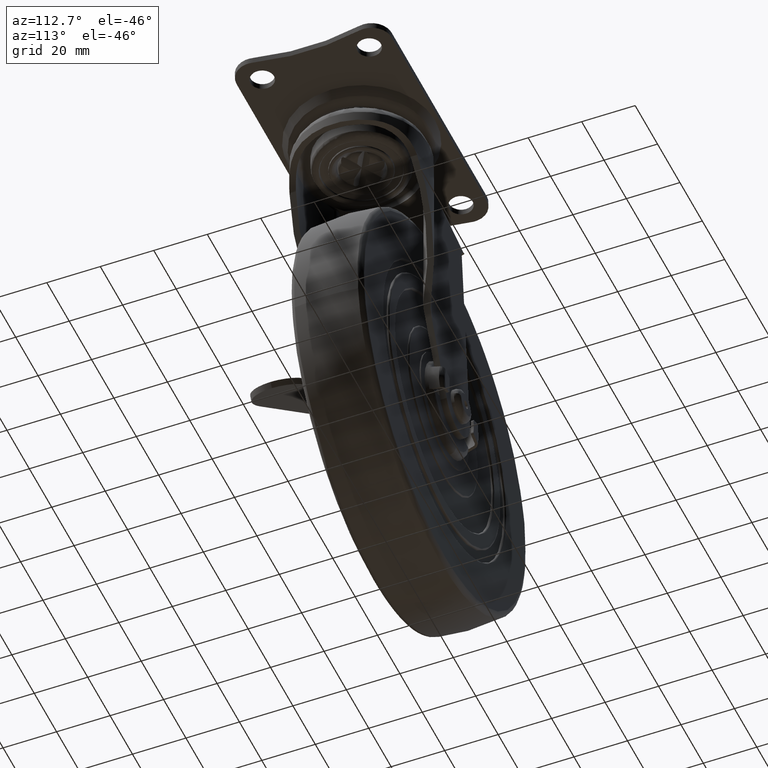
[diagram: clean part render]
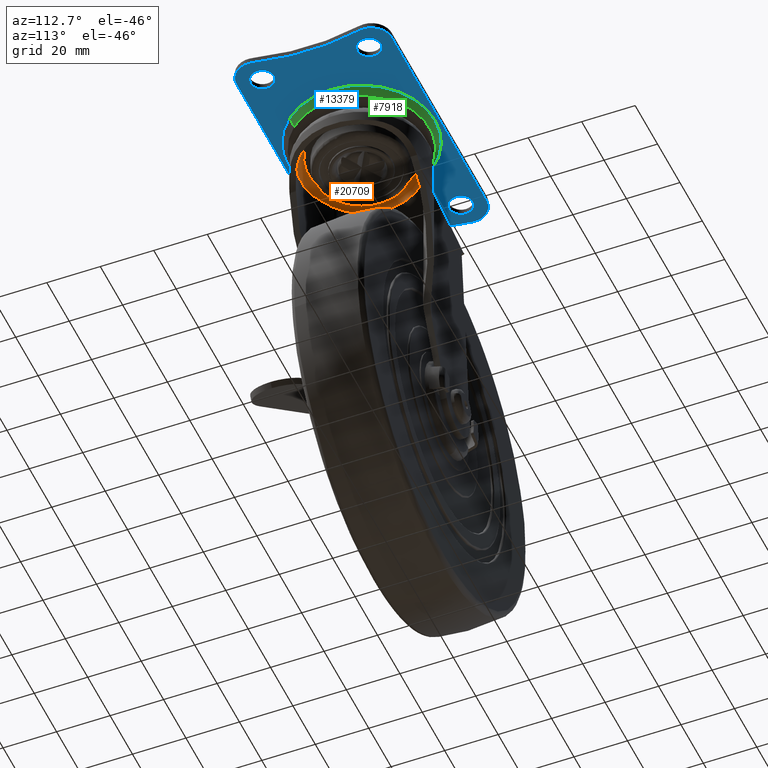
[diagram: same view with three faces highlighted in distinct colors, each labeled with its STEP entity id]
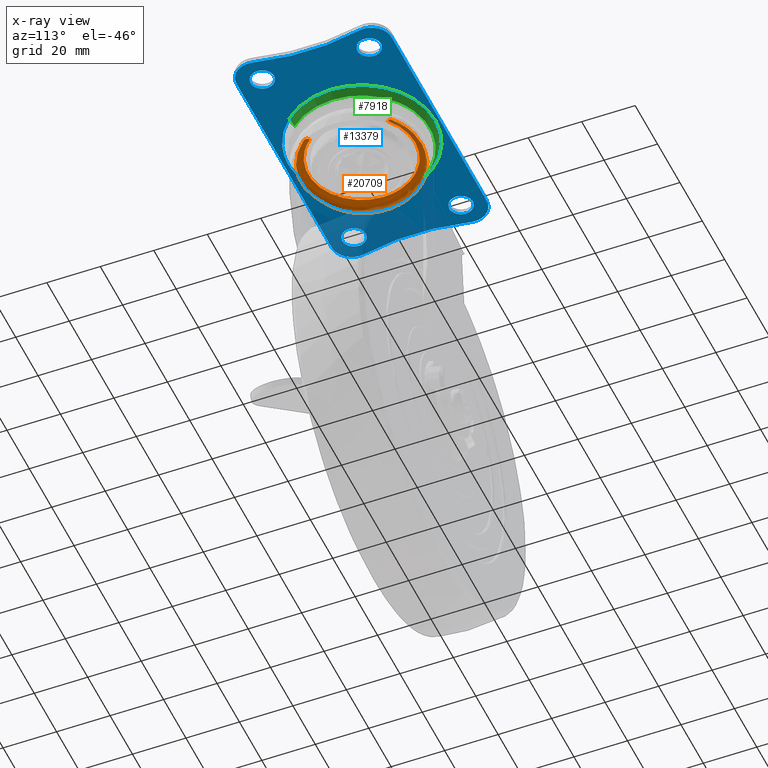
[diagram: x-ray of the same camera — body ghosted, the three highlighted faces saturated]
A machine part, auxiliary view with three faces highlighted in distinct colors.
The next image is the same camera in x-ray (body ghosted, the three faces saturated) — at least one of them is partly hidden behind the body in this view.
Their STEP definitions:

[orange] entity #20709 — the highlighted face is a freeform B-spline surface patch.
#20494=CARTESIAN_POINT('',(56.149959861652299,16.673257907185693,86.150695876734787));
#20495=CARTESIAN_POINT('',(39.476701954466598,30.823217768837996,86.150695876734773));
#20496=CARTESIAN_POINT('',(25.326742092814307,14.149959861652297,86.150695876734787));
#20497=CARTESIAN_POINT('',(11.176782231162001,-2.523298045533391,86.150695876734773));
#20498=CARTESIAN_POINT('',(27.850040138347701,-16.673257907185693,86.150695876734787));
#20499=CARTESIAN_POINT('',(44.523298045533402,-30.823217768837996,86.150695876734773));
#20500=CARTESIAN_POINT('',(58.673257907185686,-14.149959861652297,86.150695876734787));
#20501=CARTESIAN_POINT('',(57.056579620976287,17.741551048562449,87.493559951585368));
#20502=CARTESIAN_POINT('',(39.315028572413844,32.798130669538736,87.493559951585368));
#20503=CARTESIAN_POINT('',(24.258448951437547,15.056579620976301,87.493559951585368));
#20504=CARTESIAN_POINT('',(9.201869330461250,-2.684971427586156,87.493559951585368));
#20505=CARTESIAN_POINT('',(26.943420379023710,-17.741551048562464,87.493559951585368));
#20506=CARTESIAN_POINT('',(44.684971427586163,-32.798130669538736,87.493559951585368));
#20507=CARTESIAN_POINT('',(59.741551048562478,-15.056579620976301,87.493559951585368));
#20508=CARTESIAN_POINT('',(56.521898325304988,17.111522466994810,89.249599087225789));
#20509=CARTESIAN_POINT('',(39.410375858310175,31.633420792299784,89.249599087225803));
#20510=CARTESIAN_POINT('',(24.888477533005190,14.521898325304990,89.249599087225789));
#20511=CARTESIAN_POINT('',(10.366579207700211,-2.589624141689817,89.249599087225803));
#20512=CARTESIAN_POINT('',(27.478101674695019,-17.111522466994810,89.249599087225789));
#20513=CARTESIAN_POINT('',(44.589624141689825,-31.633420792299784,89.249599087225803));
#20514=CARTESIAN_POINT('',(59.111522466994813,-14.521898325304990,89.249599087225789));
#20515=CARTESIAN_POINT('',(55.990693642971848,16.485590467424405,90.994220076896354));
#20516=CARTESIAN_POINT('',(39.505103175547447,30.476284110396250,90.994220076896354));
#20517=CARTESIAN_POINT('',(25.514409532575606,13.990693642971850,90.994220076896354));
#20518=CARTESIAN_POINT('',(11.523715889603757,-2.494896824452547,90.994220076896354));
#20519=CARTESIAN_POINT('',(28.009306357028152,-16.485590467424405,90.994220076896354));
#20520=CARTESIAN_POINT('',(44.494896824452546,-30.476284110396250,90.994220076896354));
#20521=CARTESIAN_POINT('',(58.485590467424409,-13.990693642971850,90.994220076896354));
#20522=CARTESIAN_POINT('',(54.750533755654587,15.024278502616275,90.783881122786894));
#20523=CARTESIAN_POINT('',(39.726255253038310,27.774812258270867,90.783881122786909));
#20524=CARTESIAN_POINT('',(26.975721497383720,12.750533755654583,90.783881122786894));
#20525=CARTESIAN_POINT('',(14.225187741729144,-2.273744746961695,90.783881122786909));
#20526=CARTESIAN_POINT('',(29.249466244345413,-15.024278502616275,90.783881122786894));
#20527=CARTESIAN_POINT('',(44.273744746961704,-27.774812258270867,90.783881122786909));
#20528=CARTESIAN_POINT('',(57.024278502616276,-12.750533755654583,90.783881122786894));
#20536=(BOUNDED_SURFACE()B_SPLINE_SURFACE(2,2,((#20494,#20501,#20508,#20515,#20522),(#20495,#20502,#20509,#20516,#20523),(#20496,#20503,#20510,#20517,#20524),(#20497,#20504,#20511,#20518,#20525),(#20498,#20505,#20512,#20519,#20526),(#20499,#20506,#20513,#20520,#20527),(#20500,#20507,#20514,#20521,#20528)),.UNSPECIFIED.,.F.,.F.,.U.)B_SPLINE_SURFACE_WITH_KNOTS((3,2,2,3),(3,2,3),(0.0,37.539841688649872,75.079683377299730,112.619525065949600),(0.0,3.478509579030628,6.938930579567319),.UNSPECIFIED.)GEOMETRIC_REPRESENTATION_ITEM()RATIONAL_B_SPLINE_SURFACE(((0.967502048088881,0.798695067335748,1.0,0.799741872006825,0.965756431777888),(0.684127259015521,0.564762698213354,0.707106781186548,0.565502900894850,0.682892921884668),(0.967502048088881,0.798695067335748,1.0,0.799741872006825,0.965756431777888),(0.684127259015521,0.564762698213354,0.707106781186548,0.565502900894850,0.682892921884668),(0.967502048088881,0.798695067335748,1.0,0.799741872006825,0.965756431777888),(0.684127259015521,0.564762698213354,0.707106781186548,0.565502900894850,0.682892921884668),(0.967502048088881,0.798695067335748,1.0,0.799741872006825,0.965756431777888)))REPRESENTATION_ITEM('')SURFACE());
#20537=CARTESIAN_POINT('',(29.765933542220349,19.121130141982501,88.099995000000007));
#20538=VERTEX_POINT('',#20537);
#20539=CARTESIAN_POINT('',(56.688170327574902,17.307445000003568,88.099994999968757));
#20540=VERTEX_POINT('',#20539);
#20541=CARTESIAN_POINT('',(29.765933542220349,19.121130141982501,88.099995000000007));
#20542=CARTESIAN_POINT('',(30.780022768230712,19.770052248357160,88.099995000000021));
#20543=CARTESIAN_POINT('',(32.845179971515172,20.870483010975441,88.099994999999709));
#20544=CARTESIAN_POINT('',(35.908926876378160,21.938709587692880,88.099994999998188));
#20545=CARTESIAN_POINT('',(39.011082349674673,22.571497360636119,88.099994999995914));
#20546=CARTESIAN_POINT('',(42.700180936227078,22.819292954354840,88.099994999993569));
#20547=CARTESIAN_POINT('',(46.308796831790090,22.395167012954321,88.099994999986308));
#20548=CARTESIAN_POINT('',(49.711657542534027,21.412419204737031,88.099994999985014));
#20549=CARTESIAN_POINT('',(53.038923644065477,19.984717093718981,88.099994999974825));
#20550=CARTESIAN_POINT('',(55.368835848232713,18.427582059434489,88.099994999973347));
#20551=CARTESIAN_POINT('',(56.688170327574902,17.307445000003568,88.099994999968757));
#20552=B_SPLINE_CURVE_WITH_KNOTS('',3,(#20541,#20542,#20543,#20544,#20545,#20546,#20547,#20548,#20549,#20550,#20551),.UNSPECIFIED.,.F.,.U.,(4,1,1,1,1,1,1,1,4),(0.000000142781012,3.611830206969067,6.998003123340371,9.706925901977265,13.093105748528931,18.059323964858191,20.542516542347300,23.702943677600370,28.894987230536909),.UNSPECIFIED.);
#20553=EDGE_CURVE('',#20538,#20540,#20552,.T.);
#20554=ORIENTED_EDGE('',*,*,#20553,.T.);
#20555=CARTESIAN_POINT('',(54.941119330499582,15.248850316063500,90.799995000000095));
#20556=VERTEX_POINT('',#20555);
#20557=CARTESIAN_POINT('',(56.688170327574902,17.307445000003568,88.099994999968757));
#20558=CARTESIAN_POINT('',(56.688499420997019,17.307832780515611,88.475610079367769));
#20559=CARTESIAN_POINT('',(56.600203463371273,17.203791406723688,89.115738846734160));
#20560=CARTESIAN_POINT('',(56.267850751968687,16.812171743552419,89.927067649473230));
#20561=CARTESIAN_POINT('',(55.886630581057027,16.362970306830359,90.410548102351370));
#20562=CARTESIAN_POINT('',(55.427013012532022,15.821391218825250,90.725231667133897));
#20563=CARTESIAN_POINT('',(55.126942679515203,15.467810701810651,90.800162425658783));
#20564=CARTESIAN_POINT('',(54.941119330499582,15.248850316063500,90.799995000000095));
#20565=B_SPLINE_CURVE_WITH_KNOTS('',3,(#20557,#20558,#20559,#20560,#20561,#20562,#20563,#20564),.UNSPECIFIED.,.F.,.U.,(4,1,1,1,1,4),(0.000000587441294,1.126589695049701,1.921847497770806,2.849582421281640,3.379760326116846,4.241256445636495),.UNSPECIFIED.);
#20566=EDGE_CURVE('',#20540,#20556,#20565,.T.);
#20567=ORIENTED_EDGE('',*,*,#20566,.T.);
#20568=CARTESIAN_POINT('',(22.0,0.0,90.799995000000095));
#20569=VERTEX_POINT('',#20568);
#20570=CARTESIAN_POINT('',(54.941119330499582,15.248850316063500,90.799995000000095));
#20571=CARTESIAN_POINT('',(53.676842648448201,16.322344130532471,90.799994999999996));
#20572=CARTESIAN_POINT('',(51.528613065432609,17.726905155957319,90.799995000000322));
#20573=CARTESIAN_POINT('',(48.121991192573283,19.120368911525070,90.799994999999981));
#20574=CARTESIAN_POINT('',(45.464211794324541,19.763086342451430,90.799995000000834));
#20575=CARTESIAN_POINT('',(42.513053637365132,20.057811149864460,90.799994999999726));
#20576=CARTESIAN_POINT('',(39.543017154207732,19.944500919687830,90.799995000000706));
#20577=CARTESIAN_POINT('',(36.459746360471897,19.296976136205899,90.799994999999527));
#20578=CARTESIAN_POINT('',(33.624237300101598,18.235974922661761,90.799995000000678));
#20579=CARTESIAN_POINT('',(30.496456109065100,16.527126394908620,90.799994999999541));
#20580=CARTESIAN_POINT('',(27.666317062101530,14.142685827249760,90.799995000001402));
#20581=CARTESIAN_POINT('',(25.081558532338409,10.885397527455551,90.799994999996670));
#20582=CARTESIAN_POINT('',(23.361353823099531,7.615166144092128,90.799995000000720));
#20583=CARTESIAN_POINT('',(22.244040052812391,3.790760074328103,90.799995000000834));
#20584=CARTESIAN_POINT('',(21.999826924699398,1.303107116938176,90.799994999999839));
#20585=CARTESIAN_POINT('',(22.0,0.0,90.799995000000095));
#20586=B_SPLINE_CURVE_WITH_KNOTS('',3,(#20570,#20571,#20572,#20573,#20574,#20575,#20576,#20577,#20578,#20579,#20580,#20581,#20582,#20583,#20584,#20585),.UNSPECIFIED.,.F.,.U.,(4,1,1,1,1,1,1,1,1,1,1,1,1,4),(0.000000408562890,4.975509908781625,7.640965452963656,11.017207626271791,13.149598897546570,16.525839441340651,19.902128662990290,22.567635010284722,25.588316911308070,30.563852996826029,33.584714378010283,38.027195708062003,41.581115916233557,45.490411313865408),.UNSPECIFIED.);
#20587=EDGE_CURVE('',#20556,#20569,#20586,.T.);
#20588=ORIENTED_EDGE('',*,*,#20587,.T.);
#20589=CARTESIAN_POINT('',(57.248850236444959,-12.941119245575660,90.799995000000081));
#20590=VERTEX_POINT('',#20589);
#20591=CARTESIAN_POINT('',(22.0,0.0,90.799995000000095));
#20592=CARTESIAN_POINT('',(21.999560183152919,-1.650678979091166,90.799994999999981));
#20593=CARTESIAN_POINT('',(22.339957504961120,-4.380374976983479,90.799995000000436));
#20594=CARTESIAN_POINT('',(23.429352938788689,-7.575576922693887,90.799994999999754));
#20595=CARTESIAN_POINT('',(24.635599905031441,-10.027987532543010,90.799995000000351));
#20596=CARTESIAN_POINT('',(26.452214881182691,-12.796118489835971,90.799995000000294));
#20597=CARTESIAN_POINT('',(29.289246338797021,-15.658802502508619,90.799995000000337));
#20598=CARTESIAN_POINT('',(33.005030392064718,-18.020078129348139,90.799994999999740));
#20599=CARTESIAN_POINT('',(36.468343867969253,-19.328965561909339,90.799995000000479));
#20600=CARTESIAN_POINT('',(40.096799968367783,-20.008778914689110,90.799994999999299));
#20601=CARTESIAN_POINT('',(43.350490412172292,-20.053720490558590,90.799995000002298));
#20602=CARTESIAN_POINT('',(46.933552272128580,-19.484171323619250,90.799994999998816));
#20603=CARTESIAN_POINT('',(50.133756261683530,-18.391528717005691,90.799995000000976));
#20604=CARTESIAN_POINT('',(53.858347422030143,-16.308268838945459,90.799994999999143));
#20605=CARTESIAN_POINT('',(56.058068276652847,-14.345415745994201,90.799995000000649));
#20606=CARTESIAN_POINT('',(57.248850236444959,-12.941119245575660,90.799995000000081));
#20607=B_SPLINE_CURVE_WITH_KNOTS('',3,(#20591,#20592,#20593,#20594,#20595,#20596,#20597,#20598,#20599,#20600,#20601,#20602,#20603,#20604,#20605,#20606),.UNSPECIFIED.,.F.,.U.,(4,1,1,1,1,1,1,1,1,1,1,1,1,4),(0.000000450822220,4.951933891093326,8.189752413623928,10.094344955941180,13.141739788103781,18.093760426248160,22.093449400845369,26.283398903841800,29.140314965080812,33.139955090427193,35.996895903363402,39.996579314971399,43.234393061319139,48.757702221906541),.UNSPECIFIED.);
#20608=EDGE_CURVE('',#20569,#20590,#20607,.T.);
#20609=ORIENTED_EDGE('',*,*,#20608,.T.);
#20610=CARTESIAN_POINT('',(59.307445000053612,-14.688170327515920,88.099994999968828));
#20611=VERTEX_POINT('',#20610);
#20612=CARTESIAN_POINT('',(59.307445000053612,-14.688170327515920,88.099994999968828));
#20613=CARTESIAN_POINT('',(59.307990407134461,-14.688633193779200,88.519828480514633));
#20614=CARTESIAN_POINT('',(59.183189787481169,-14.582719654406199,89.203944737988294));
#20615=CARTESIAN_POINT('',(58.820261885458507,-14.274716547098690,89.879289093635123));
#20616=CARTESIAN_POINT('',(58.444885453059022,-13.956148845501829,90.325553945656878));
#20617=CARTESIAN_POINT('',(57.956113854166141,-13.541346978817630,90.688816167647246));
#20618=CARTESIAN_POINT('',(57.501494986560402,-13.155529236248290,90.800268067689117));
#20619=CARTESIAN_POINT('',(57.248850236444959,-12.941119245575660,90.799995000000081));
#20620=B_SPLINE_CURVE_WITH_KNOTS('',3,(#20612,#20613,#20614,#20615,#20616,#20617,#20618,#20619),.UNSPECIFIED.,.F.,.U.,(4,1,1,1,1,4),(0.000000587330754,1.259132413108284,2.054445554455032,2.451937438701319,3.247217665488307,4.241256499730229),.UNSPECIFIED.);
#20621=EDGE_CURVE('',#20611,#20590,#20620,.T.);
#20622=ORIENTED_EDGE('',*,*,#20621,.F.);
#20623=CARTESIAN_POINT('',(29.765933542221049,-19.121130141982999,88.099995000000092));
#20624=VERTEX_POINT('',#20623);
#20625=CARTESIAN_POINT('',(59.307445000053612,-14.688170327515920,88.099994999968828));
#20626=CARTESIAN_POINT('',(58.154030803338728,-16.047859558157828,88.099994999973362));
#20627=CARTESIAN_POINT('',(55.524514589313078,-18.493183859267202,88.099994999982016));
#20628=CARTESIAN_POINT('',(51.354635957207790,-20.845597366468031,88.099994999991296));
#20629=CARTESIAN_POINT('',(47.065932982125062,-22.253547068103320,88.099994999997847));
#20630=CARTESIAN_POINT('',(42.754957063748058,-22.851274958156839,88.099995000002352));
#20631=CARTESIAN_POINT('',(38.240444004388550,-22.535318313794299,88.099995000005578));
#20632=CARTESIAN_POINT('',(33.799284293857468,-21.324049044967499,88.099995000002963));
#20633=CARTESIAN_POINT('',(31.124648426576680,-19.990773179066441,88.099995000001982));
#20634=CARTESIAN_POINT('',(29.765933542221049,-19.121130141982999,88.099995000000092));
#20635=B_SPLINE_CURVE_WITH_KNOTS('',3,(#20625,#20626,#20627,#20628,#20629,#20630,#20631,#20632,#20633,#20634),.UNSPECIFIED.,.F.,.U.,(4,1,1,1,1,1,1,4),(0.000000150977733,5.348984236589438,10.697983201392720,14.264045932278520,18.848779577160212,23.688380449645319,27.763852053260749,32.603375171877587),.UNSPECIFIED.);
#20636=EDGE_CURVE('',#20611,#20624,#20635,.T.);
#20637=ORIENTED_EDGE('',*,*,#20636,.T.);
#20638=CARTESIAN_POINT('',(29.765933542221081,-19.121130141982949,88.099995000000050));
#20639=CARTESIAN_POINT('',(29.378927611434499,-18.873516311542961,88.031755439843849));
#20640=CARTESIAN_POINT('',(28.999940711086150,-18.611428950661740,87.964929850550732));
#20641=CARTESIAN_POINT('',(28.443489981818001,-18.196585672335392,87.866812612562427));
#20642=CARTESIAN_POINT('',(28.259797080093179,-18.054506552953072,87.834422610703697));
#20643=CARTESIAN_POINT('',(27.897549567448198,-17.763952723590869,87.770548625929536));
#20644=CARTESIAN_POINT('',(27.719150159998410,-17.615617435811810,87.739092009562540));
#20645=CARTESIAN_POINT('',(27.192012378514761,-17.161562865185999,87.646143433097407));
#20646=CARTESIAN_POINT('',(26.851324860889282,-16.846805634629380,87.586071055637419));
#20647=CARTESIAN_POINT('',(26.356134434987741,-16.356886739194760,87.498755657683645));
#20648=CARTESIAN_POINT('',(26.193713560418409,-16.190613838653999,87.470116486655215));
#20649=CARTESIAN_POINT('',(26.013953971860150,-16.000229535916880,87.438420033755548));
#20650=CARTESIAN_POINT('',(25.994032253736211,-15.979041094901561,87.434907298745074));
#20651=CARTESIAN_POINT('',(25.953903658371921,-15.936177249760270,87.427831547498116));
#20652=CARTESIAN_POINT('',(25.893862657559399,-15.871768393206990,87.417244703316015));
#20653=CARTESIAN_POINT('',(25.754827367288211,-15.720691574195060,87.392729040119292));
#20654=CARTESIAN_POINT('',(25.637462440396771,-15.589850908199690,87.372034445148714));
#20655=CARTESIAN_POINT('',(24.940435261666892,-14.799474279145880,87.249129796124890));
#20656=CARTESIAN_POINT('',(24.371560933104220,-14.059165422218660,87.148821943254561));
#20657=CARTESIAN_POINT('',(23.590767803778160,-12.894709793092099,87.011147102949394));
#20658=CARTESIAN_POINT('',(23.342632261916918,-12.497527594270871,86.967394129445012));
#20659=CARTESIAN_POINT('',(22.988528796894780,-11.888278354843790,86.904956159427897));
#20660=CARTESIAN_POINT('',(22.873375615166999,-11.682690198066870,86.884651554649025));
#20661=CARTESIAN_POINT('',(22.649769989016889,-11.268227613631140,86.845223865399092));
#20662=CARTESIAN_POINT('',(22.541510045114251,-11.059732342640711,86.826134723949920));
#20663=CARTESIAN_POINT('',(22.017514482940090,-10.011082435550581,86.733740205308038));
#20664=CARTESIAN_POINT('',(21.653472003442310,-9.152485393898230,86.669549719574107));
#20665=CARTESIAN_POINT('',(21.028961606373372,-7.398339325836950,86.559431730626613));
#20666=CARTESIAN_POINT('',(20.768515497653830,-6.502782518749664,86.513508072900507));
#20667=CARTESIAN_POINT('',(20.506683235163909,-5.360601400197228,86.467339998962444));
#20668=CARTESIAN_POINT('',(20.457514932201502,-5.131024182301582,86.458670304002041));
#20669=CARTESIAN_POINT('',(20.365597165771341,-4.669579716460938,86.442462728218942));
#20670=CARTESIAN_POINT('',(20.322809565301529,-4.437484696803038,86.434918122816470));
#20671=CARTESIAN_POINT('',(20.204396140227178,-3.739271250441256,86.414038649400510));
#20672=CARTESIAN_POINT('',(20.139076648381160,-3.273578662050560,86.402521065201910));
#20673=CARTESIAN_POINT('',(19.982671607891021,-1.875870966244631,86.374942647611320));
#20674=CARTESIAN_POINT('',(19.930958475678700,-0.943228811110138,86.365824230771338));
#20675=CARTESIAN_POINT('',(19.930238492633169,0.923691206217992,86.365697278385241));
#20676=CARTESIAN_POINT('',(19.981226509371108,1.857968986672240,86.374687837853813));
#20677=CARTESIAN_POINT('',(20.111335904692719,3.026873294935415,86.397629625569834));
#20678=CARTESIAN_POINT('',(20.140691417317239,3.260707248257529,86.402805792419727));
#20679=CARTESIAN_POINT('',(20.206186156494219,3.728483192780408,86.414354277438804));
#20680=CARTESIAN_POINT('',(20.242197254351790,3.961488817507984,86.420704003071037));
#20681=CARTESIAN_POINT('',(20.359818067981070,4.656999431814225,86.441443717759569));
#20682=CARTESIAN_POINT('',(20.451058829419321,5.116385939926736,86.457531919343964));
#20683=CARTESIAN_POINT('',(20.763000685258671,6.481771024738786,86.512535663068348));
#20684=CARTESIAN_POINT('',(21.021771478772131,7.375045254993178,86.558163917639945));
#20685=CARTESIAN_POINT('',(21.643271545079021,9.126846823955377,86.667751104264283));
#20686=CARTESIAN_POINT('',(22.005973192146111,9.985383396235338,86.731705165158104));
#20687=CARTESIAN_POINT('',(22.528989145538880,11.035278135124059,86.823926952409963));
#20688=CARTESIAN_POINT('',(22.637103445081369,11.244116301002220,86.842990412839043));
#20689=CARTESIAN_POINT('',(22.860442849963810,11.659283507401179,86.882371160115341));
#20690=CARTESIAN_POINT('',(22.975136649587981,11.864626351854110,86.902594763467107));
#20691=CARTESIAN_POINT('',(23.328274496393060,12.473944348583260,86.964862469007159));
#20692=CARTESIAN_POINT('',(23.575765969318802,12.871215649380829,87.008501875825957));
#20693=CARTESIAN_POINT('',(24.354633435867481,14.036063473908090,87.145837169962789));
#20694=CARTESIAN_POINT('',(24.922232757317840,14.776799676792120,87.245920204768041));
#20695=CARTESIAN_POINT('',(25.695147679554012,15.655730884196201,87.382205905156027));
#20696=CARTESIAN_POINT('',(25.852914825046149,15.829157764757030,87.410024498513550));
#20697=CARTESIAN_POINT('',(26.174949468659172,16.171194973655780,87.466807872325276));
#20698=CARTESIAN_POINT('',(26.338599362230742,16.339144505969148,87.495663752477398));
#20699=CARTESIAN_POINT('',(26.836858470491698,16.833224981469439,87.583520241711156));
#20700=CARTESIAN_POINT('',(27.179011580599681,17.149858268422658,87.643851042565814));
#20701=CARTESIAN_POINT('',(28.235508588214490,18.061373642784901,87.830139895967818));
#20702=CARTESIAN_POINT('',(28.979716391443759,18.618093302558009,87.961363758749414));
#20703=CARTESIAN_POINT('',(29.765933542220381,19.121130141982508,88.099994999999936));
#20704=B_SPLINE_CURVE_WITH_KNOTS('',3,(#20638,#20639,#20640,#20641,#20642,#20643,#20644,#20645,#20646,#20647,#20648,#20649,#20650,#20651,#20652,#20653,#20654,#20655,#20656,#20657,#20658,#20659,#20660,#20661,#20662,#20663,#20664,#20665,#20666,#20667,#20668,#20669,#20670,#20671,#20672,#20673,#20674,#20675,#20676,#20677,#20678,#20679,#20680,#20681,#20682,#20683,#20684,#20685,#20686,#20687,#20688,#20689,#20690,#20691,#20692,#20693,#20694,#20695,#20696,#20697,#20698,#20699,#20700,#20701,#20702,#20703),.UNSPECIFIED.,.F.,.U.,(4,2,2,2,2,2,2,1,1,2,2,2,2,2,2,2,2,2,2,2,2,2,2,2,2,2,2,2,2,2,2,2,2,4),(0.0,0.031249999999998,0.046874999999998,0.062499999999997,0.093749999999995,0.109374999999994,0.111328124999994,0.113281249999994,0.117187499999994,0.124999999999994,0.187499999999995,0.218749999999995,0.234374999999995,0.249999999999996,0.312499999999996,0.374999999999997,0.390624999999997,0.406249999999997,0.437499999999997,0.499999999999998,0.562499999999998,0.578124999999998,0.593749999999998,0.624999999999998,0.687499999999998,0.749999999999999,0.765624999999999,0.781249999999999,0.812499999999999,0.875000000000000,0.890625000000000,0.906250000000000,0.937500000000000,1.0),.UNSPECIFIED.);
#20705=EDGE_CURVE('',#20624,#20538,#20704,.T.);
#20706=ORIENTED_EDGE('',*,*,#20705,.T.);
#20707=EDGE_LOOP('',(#20554,#20567,#20588,#20609,#20622,#20637,#20706));
#20708=FACE_OUTER_BOUND('',#20707,.T.);
#20709=ADVANCED_FACE('',(#20708),#20536,.F.);

[blue] entity #13379 — the highlighted face is a freeform B-spline surface patch.
#7731=CARTESIAN_POINT('',(62.275114301647370,-18.578719291365971,98.699996562001672));
#7732=VERTEX_POINT('',#7731);
#7738=CARTESIAN_POINT('',(41.999996053314682,-27.499984350591419,98.699996999999982));
#7739=VERTEX_POINT('',#7738);
#7740=CARTESIAN_POINT('',(62.275114301647370,-18.578719291365971,98.699996562001672));
#7741=CARTESIAN_POINT('',(60.631168189942471,-20.374084692355620,98.699996597515707));
#7742=CARTESIAN_POINT('',(57.873082464120650,-22.677740390488321,98.699996657097344));
#7743=CARTESIAN_POINT('',(53.388463575828261,-25.138930039009221,98.699996753978169));
#7744=CARTESIAN_POINT('',(48.530368695282959,-26.946867594058201,98.699996858925033));
#7745=CARTESIAN_POINT('',(44.493685009996057,-27.500945873065401,98.699996946129474));
#7746=CARTESIAN_POINT('',(41.999996053314682,-27.499984350591419,98.699996999999982));
#7747=B_SPLINE_CURVE_WITH_KNOTS('',3,(#7740,#7741,#7742,#7743,#7744,#7745,#7746),.UNSPECIFIED.,.F.,.U.,(4,1,1,1,4),(0.000000049053661,7.302617917621602,10.686760345817479,15.317654689420410,22.798393656364251),.UNSPECIFIED.);
#7748=EDGE_CURVE('',#7732,#7739,#7747,.T.);
#7750=CARTESIAN_POINT('',(22.292108579031151,-19.179369752159179,98.699997439508962));
#7751=VERTEX_POINT('',#7750);
#7752=CARTESIAN_POINT('',(41.999996053314682,-27.499984350591419,98.699996999999982));
#7753=CARTESIAN_POINT('',(40.054513903329983,-27.500310680621482,98.699997043386787));
#7754=CARTESIAN_POINT('',(36.507066307808017,-27.121914970340701,98.699997122498516));
#7755=CARTESIAN_POINT('',(32.226509905634167,-25.799530151139781,98.699997217960160));
#7756=CARTESIAN_POINT('',(28.696777923828218,-24.150879482773071,98.699997296677140));
#7757=CARTESIAN_POINT('',(25.491757332994840,-22.133522313048690,98.699997368153518));
#7758=CARTESIAN_POINT('',(23.329613998970409,-20.245600402754441,98.699997416370920));
#7759=CARTESIAN_POINT('',(22.292108579031151,-19.179369752159179,98.699997439508962));
#7760=B_SPLINE_CURVE_WITH_KNOTS('',3,(#7752,#7753,#7754,#7755,#7756,#7757,#7758,#7759),.UNSPECIFIED.,.F.,.U.,(4,1,1,1,1,4),(0.000000012782262,5.836394679475502,10.642838465584040,13.389373485216201,17.509184265396112,21.972309178719009),.UNSPECIFIED.);
#7761=EDGE_CURVE('',#7739,#7751,#7760,.T.);
#7806=CARTESIAN_POINT('',(14.500015649408301,0.0,98.699996999999996));
#7807=VERTEX_POINT('',#7806);
#7808=CARTESIAN_POINT('',(22.292108579031151,-19.179369752159179,98.699997439508962));
#7809=CARTESIAN_POINT('',(21.058383538829510,-17.911943124980741,98.699997410465059));
#7810=CARTESIAN_POINT('',(19.184088066147758,-15.571290660349700,98.699997356827211));
#7811=CARTESIAN_POINT('',(16.739026500523192,-11.226481636345060,98.699997257263021));
#7812=CARTESIAN_POINT('',(14.970839182072520,-6.190410766900370,98.699997141857523));
#7813=CARTESIAN_POINT('',(14.499608414177761,-2.100394290842059,98.699997048132147));
#7814=CARTESIAN_POINT('',(14.500015649408301,0.0,98.699996999999996));
#7815=B_SPLINE_CURVE_WITH_KNOTS('',3,(#7808,#7809,#7810,#7811,#7812,#7813,#7814),.UNSPECIFIED.,.F.,.U.,(4,1,1,1,4),(0.000000016691189,5.306208400242053,8.954243992731110,14.923701554396491,21.224833550804981),.UNSPECIFIED.);
#7816=EDGE_CURVE('',#7751,#7807,#7815,.T.);
#7818=CARTESIAN_POINT('',(42.000003946685339,27.499984350591419,98.699996999999996));
#7819=VERTEX_POINT('',#7818);
#7820=CARTESIAN_POINT('',(14.500015649408301,0.0,98.699996999999996));
#7821=CARTESIAN_POINT('',(14.499918853653741,1.687355903317398,98.699996999999996));
#7822=CARTESIAN_POINT('',(14.842507568046321,5.399610738478458,98.699996999999968));
#7823=CARTESIAN_POINT('',(16.320840021517760,10.273371253986340,98.699997000000124));
#7824=CARTESIAN_POINT('',(18.243319595576889,13.977792683687040,98.699997000000067));
#7825=CARTESIAN_POINT('',(20.200257101716570,16.868058958610209,98.699996999999996));
#7826=CARTESIAN_POINT('',(22.852374279615638,19.943094785929951,98.699996999999840));
#7827=CARTESIAN_POINT('',(26.455061832193021,22.862809640344540,98.699996999999243));
#7828=CARTESIAN_POINT('',(30.704352509560270,25.201437880175689,98.699997000001403));
#7829=CARTESIAN_POINT('',(35.700762928644693,26.989425917451189,98.699996999999044));
#7830=CARTESIAN_POINT('',(39.637615125445507,27.500647061166742,98.699997000000124));
#7831=CARTESIAN_POINT('',(42.000003946685339,27.499984350591419,98.699996999999996));
#7832=B_SPLINE_CURVE_WITH_KNOTS('',3,(#7820,#7821,#7822,#7823,#7824,#7825,#7826,#7827,#7828,#7829,#7830,#7831),.UNSPECIFIED.,.F.,.U.,(4,1,1,1,1,1,1,1,1,4),(0.000000030787398,5.062112954458364,11.136768616985471,15.186503513478719,17.548854359907072,21.598573852511741,27.335673494392321,31.385417457654469,36.110140551591734,43.197147671309487),.UNSPECIFIED.);
#7833=EDGE_CURVE('',#7807,#7819,#7832,.T.);
#7835=CARTESIAN_POINT('',(69.499984350591703,0.0,98.699996999999996));
#7836=VERTEX_POINT('',#7835);
#7837=CARTESIAN_POINT('',(42.000003946685339,27.499984350591419,98.699996999999996));
#7838=CARTESIAN_POINT('',(43.687375440477147,27.500172161276279,98.699996999999925));
#7839=CARTESIAN_POINT('',(46.612081821329717,27.229883012939851,98.699997000000209));
#7840=CARTESIAN_POINT('',(51.089328221833540,26.079316973410972,98.699996999999883));
#7841=CARTESIAN_POINT('',(54.610198320580160,24.544321312525351,98.699997000000138));
#7842=CARTESIAN_POINT('',(58.253919246630183,22.299160143034982,98.699996999999783));
#7843=CARTESIAN_POINT('',(61.208002974080443,19.844366539918820,98.699997000000153));
#7844=CARTESIAN_POINT('',(63.877877193245382,16.787100267301351,98.699997000000536));
#7845=CARTESIAN_POINT('',(66.069483807258706,13.507300572382491,98.699996999999058));
#7846=CARTESIAN_POINT('',(67.807385021781471,9.832901486206046,98.699997000001957));
#7847=CARTESIAN_POINT('',(69.158232025112397,5.174505530913560,98.699996999997495));
#7848=CARTESIAN_POINT('',(69.500303437619735,1.912378332030638,98.699997000002568));
#7849=CARTESIAN_POINT('',(69.499984350591703,0.0,98.699996999999996));
#7850=B_SPLINE_CURVE_WITH_KNOTS('',3,(#7837,#7838,#7839,#7840,#7841,#7842,#7843,#7844,#7845,#7846,#7847,#7848,#7849),.UNSPECIFIED.,.F.,.U.,(4,1,1,1,1,1,1,1,1,1,4),(0.000000032151213,5.062112434403154,8.774401483428825,13.836596990460119,16.536412425554619,21.598571624254049,25.310820188564449,28.685578016232171,33.410300623338500,37.460044168977163,43.197143222447266),.UNSPECIFIED.);
#7851=EDGE_CURVE('',#7819,#7836,#7850,.T.);
#7853=CARTESIAN_POINT('',(69.499984350591703,0.0,98.699996999999996));
#7854=CARTESIAN_POINT('',(69.500512366412991,-2.231148149771713,98.699996947399995));
#7855=CARTESIAN_POINT('',(69.070917394889236,-5.736868007097860,98.699996864751910));
#7856=CARTESIAN_POINT('',(67.660846327450813,-10.093872217490690,98.699996762034360));
#7857=CARTESIAN_POINT('',(65.710166605310505,-14.233417061623371,98.699996664443390));
#7858=CARTESIAN_POINT('',(63.782850087711203,-16.934094654768529,98.699996600774242));
#7859=CARTESIAN_POINT('',(62.275114301647370,-18.578719291365971,98.699996562001672));
#7860=B_SPLINE_CURVE_WITH_KNOTS('',3,(#7853,#7854,#7855,#7856,#7857,#7858,#7859),.UNSPECIFIED.,.F.,.U.,(4,1,1,1,4),(0.000000021849619,6.693316144377979,10.518037513932750,13.705321604215429,20.398637726695579),.UNSPECIFIED.);
#7861=EDGE_CURVE('',#7836,#7732,#7860,.T.);
#7945=CARTESIAN_POINT('',(-3.400000000000116,20.0,98.699996999999996));
#7946=VERTEX_POINT('',#7945);
#7947=CARTESIAN_POINT('',(-2.068699980865290,16.846736575812379,98.699997000106805));
#7948=VERTEX_POINT('',#7947);
#7949=CARTESIAN_POINT('',(-3.400000000000116,20.0,98.699996999999996));
#7950=CARTESIAN_POINT('',(-3.400512378864490,19.450608168051499,98.699997000018669));
#7951=CARTESIAN_POINT('',(-3.177493538499285,18.279220548558769,98.699997000058374));
#7952=CARTESIAN_POINT('',(-2.515569329565004,17.280379868224760,98.699997000091969));
#7953=CARTESIAN_POINT('',(-2.068699980865290,16.846736575812379,98.699997000106805));
#7954=B_SPLINE_CURVE_WITH_KNOTS('',3,(#7949,#7950,#7951,#7952,#7953),.UNSPECIFIED.,.F.,.U.,(4,1,4),(0.000000119753170,1.647984335181236,3.515639993302362),.UNSPECIFIED.);
#7955=EDGE_CURVE('',#7946,#7948,#7954,.T.);
#7957=CARTESIAN_POINT('',(0.999995359596306,24.399999999997551,98.699996999999996));
#7958=VERTEX_POINT('',#7957);
#7959=CARTESIAN_POINT('',(0.999995359596306,24.399999999997551,98.699996999999996));
#7960=CARTESIAN_POINT('',(0.604016643673853,24.400139544996151,98.699996999999996));
#7961=CARTESIAN_POINT('',(-0.151861357016964,24.297254070528250,98.699997000000025));
#7962=CARTESIAN_POINT('',(-1.123643161997365,23.894765393187662,98.699997000000181));
#7963=CARTESIAN_POINT('',(-1.892503294199504,23.353165151203331,98.699996999999883));
#7964=CARTESIAN_POINT('',(-2.566005627639414,22.645915084927012,98.699996999999641));
#7965=CARTESIAN_POINT('',(-3.206260390154272,21.547476640367030,98.699997000000607));
#7966=CARTESIAN_POINT('',(-3.400662172113538,20.576068911400220,98.699996999999414));
#7967=CARTESIAN_POINT('',(-3.400000000000116,20.0,98.699996999999996));
#7968=B_SPLINE_CURVE_WITH_KNOTS('',3,(#7959,#7960,#7961,#7962,#7963,#7964,#7965,#7966,#7967),.UNSPECIFIED.,.F.,.U.,(4,1,1,1,1,1,4),(0.000000460141734,1.187911865419760,2.267926155749346,3.131933689348613,3.995801264283137,5.183756107355141,6.911674659631109),.UNSPECIFIED.);
#7969=EDGE_CURVE('',#7958,#7946,#7968,.T.);
#7971=CARTESIAN_POINT('',(5.399999999999884,20.0,98.699996999999996));
#7972=VERTEX_POINT('',#7971);
#7973=CARTESIAN_POINT('',(5.399999999999884,20.0,98.699996999999996));
#7974=CARTESIAN_POINT('',(5.400047179506490,20.323970180316611,98.699997000000067));
#7975=CARTESIAN_POINT('',(5.324159332307570,21.007925301586091,98.699996999999868));
#7976=CARTESIAN_POINT('',(4.994283104659139,21.929945947699810,98.699997000000124));
#7977=CARTESIAN_POINT('',(4.491048725502873,22.724395885693681,98.699997000000010));
#7978=CARTESIAN_POINT('',(3.718163372807516,23.536934747828759,98.699996999999684));
#7979=CARTESIAN_POINT('',(2.547832846960489,24.218866286532538,98.699997000000820));
#7980=CARTESIAN_POINT('',(1.503968581271617,24.400259826255230,98.699996999999328));
#7981=CARTESIAN_POINT('',(0.999995359596306,24.399999999997551,98.699996999999996));
#7982=B_SPLINE_CURVE_WITH_KNOTS('',3,(#7973,#7974,#7975,#7976,#7977,#7978,#7979,#7980,#7981),.UNSPECIFIED.,.F.,.U.,(4,1,1,1,1,1,4),(0.000000453790404,0.971940261254480,2.051916860534576,2.915876060195997,3.779744292028541,5.399752912186073,6.911679890578006),.UNSPECIFIED.);
#7983=EDGE_CURVE('',#7972,#7958,#7982,.T.);
#7985=CARTESIAN_POINT('',(3.972597612751953,16.755978791268749,98.699996999895859));
#7986=VERTEX_POINT('',#7985);
#7987=CARTESIAN_POINT('',(3.972597612751953,16.755978791268749,98.699996999895859));
#7988=CARTESIAN_POINT('',(4.280890595379049,17.038254415174141,98.699996999904940));
#7989=CARTESIAN_POINT('',(4.694241754984453,17.543099465820251,98.699996999921069));
#7990=CARTESIAN_POINT('',(5.242715721831575,18.632470437486809,98.699996999956269));
#7991=CARTESIAN_POINT('',(5.400634219151578,19.429910134389079,98.699996999981721));
#7992=CARTESIAN_POINT('',(5.399999999999884,20.0,98.699996999999996));
#7993=B_SPLINE_CURVE_WITH_KNOTS('',3,(#7987,#7988,#7989,#7990,#7991,#7992),.UNSPECIFIED.,.F.,.U.,(4,1,1,4),(0.000000100461975,1.253963838711737,1.937896384353674,3.647840712105343),.UNSPECIFIED.);
#7994=EDGE_CURVE('',#7986,#7972,#7993,.T.);
#8073=CARTESIAN_POINT('',(1.000004640403446,15.600000000002449,98.699996999999982));
#8074=VERTEX_POINT('',#8073);
#8075=CARTESIAN_POINT('',(-2.068699980865290,16.846736575812379,98.699997000106805));
#8076=CARTESIAN_POINT('',(-1.739283370475196,16.525792470680368,98.699997000095323));
#8077=CARTESIAN_POINT('',(-1.124838620970207,16.092269375458631,98.699997000073907));
#8078=CARTESIAN_POINT('',(-0.061165914889795,15.689778062693540,98.699997000036987));
#8079=CARTESIAN_POINT('',(0.610870121446040,15.599864959718380,98.699997000013269));
#8080=CARTESIAN_POINT('',(1.000004640403446,15.600000000002449,98.699996999999982));
#8081=B_SPLINE_CURVE_WITH_KNOTS('',3,(#8075,#8076,#8077,#8078,#8079,#8080),.UNSPECIFIED.,.F.,.U.,(4,1,1,4),(0.000000100950052,1.379670471073146,2.228647997841792,3.396041165762843),.UNSPECIFIED.);
#8082=EDGE_CURVE('',#7948,#8074,#8081,.T.);
#8105=CARTESIAN_POINT('',(1.000004640403446,15.600000000002449,98.699996999999982));
#8106=CARTESIAN_POINT('',(1.305982396919779,15.599974083331210,98.699996999989423));
#8107=CARTESIAN_POINT('',(1.985935893718765,15.671139276574181,98.699996999965236));
#8108=CARTESIAN_POINT('',(3.021362001640170,16.032861112576690,98.699996999929382));
#8109=CARTESIAN_POINT('',(3.671889323132847,16.480252200402081,98.699996999906375));
#8110=CARTESIAN_POINT('',(3.972597612751953,16.755978791268749,98.699996999895859));
#8111=B_SPLINE_CURVE_WITH_KNOTS('',3,(#8105,#8106,#8107,#8108,#8109,#8110),.UNSPECIFIED.,.F.,.U.,(4,1,1,4),(0.000000111657680,0.917957134610202,2.039895935284219,3.263834433322501),.UNSPECIFIED.);
#8112=EDGE_CURVE('',#8074,#7986,#8111,.T.);
#8143=CARTESIAN_POINT('',(78.599991999999801,20.0,98.699996999999996));
#8144=VERTEX_POINT('',#8143);
#8145=CARTESIAN_POINT('',(79.931292019134617,16.846736575812390,98.699997000106833));
#8146=VERTEX_POINT('',#8145);
#8147=CARTESIAN_POINT('',(78.599991999999801,20.0,98.699996999999996));
#8148=CARTESIAN_POINT('',(78.599192430172820,19.377333738834949,98.699997000021142));
#8149=CARTESIAN_POINT('',(78.853173706253884,18.206293777316649,98.699997000060648));
#8150=CARTESIAN_POINT('',(79.537235182787015,17.229536002841311,98.699997000093887));
#8151=CARTESIAN_POINT('',(79.931292019134617,16.846736575812390,98.699997000106833));
#8152=B_SPLINE_CURVE_WITH_KNOTS('',3,(#8147,#8148,#8149,#8150,#8151),.UNSPECIFIED.,.F.,.U.,(4,1,4),(0.000000119753747,1.867655777875040,3.515639993302345),.UNSPECIFIED.);
#8153=EDGE_CURVE('',#8144,#8146,#8152,.T.);
#8155=CARTESIAN_POINT('',(82.999987359596233,24.399999999997561,98.699996999999996));
#8156=VERTEX_POINT('',#8155);
#8157=CARTESIAN_POINT('',(82.999987359596233,24.399999999997561,98.699996999999996));
#8158=CARTESIAN_POINT('',(82.423896512462662,24.400676701234261,98.699996999999982));
#8159=CARTESIAN_POINT('',(81.596478261148505,24.235010734081161,98.699996999999968));
#8160=CARTESIAN_POINT('',(80.602295285837101,23.719027478897221,98.699996999999939));
#8161=CARTESIAN_POINT('',(79.946440906530768,23.207232257624021,98.699997000000124));
#8162=CARTESIAN_POINT('',(79.355832629980412,22.522498762277351,98.699996999999698));
#8163=CARTESIAN_POINT('',(78.779231230317663,21.475530133418001,98.699997000000309));
#8164=CARTESIAN_POINT('',(78.599463993166268,20.576051745106110,98.699996999999712));
#8165=CARTESIAN_POINT('',(78.599991999999801,20.0,98.699996999999996));
#8166=B_SPLINE_CURVE_WITH_KNOTS('',3,(#8157,#8158,#8159,#8160,#8161,#8162,#8163,#8164,#8165),.UNSPECIFIED.,.F.,.U.,(4,1,1,1,1,1,4),(0.000000460139657,1.727919010390329,2.483898488296112,3.347905933529983,4.211740996629334,5.183756107355040,6.911674659631038),.UNSPECIFIED.);
#8167=EDGE_CURVE('',#8156,#8144,#8166,.T.);
#8169=CARTESIAN_POINT('',(87.399991999999799,20.0,98.699996999999996));
#8170=VERTEX_POINT('',#8169);
#8171=CARTESIAN_POINT('',(87.399991999999799,20.0,98.699996999999996));
#8172=CARTESIAN_POINT('',(87.400036202337859,20.323971321847839,98.699997000000124));
#8173=CARTESIAN_POINT('',(87.324136114180462,21.007904196960720,98.699996999999883));
#8174=CARTESIAN_POINT('',(86.921151344687345,22.134961520050080,98.699996999999897));
#8175=CARTESIAN_POINT('',(86.224900756547370,23.073897441409741,98.699997000000380));
#8176=CARTESIAN_POINT('',(85.340623024045556,23.763536277765670,98.699996999999257));
#8177=CARTESIAN_POINT('',(84.331681308743811,24.256111953567679,98.699997000001758));
#8178=CARTESIAN_POINT('',(83.504008508731033,24.400373940481600,98.699996999998149));
#8179=CARTESIAN_POINT('',(82.999987359596233,24.399999999997561,98.699996999999996));
#8180=B_SPLINE_CURVE_WITH_KNOTS('',3,(#8171,#8172,#8173,#8174,#8175,#8176,#8177,#8178,#8179),.UNSPECIFIED.,.F.,.U.,(4,1,1,1,1,1,4),(0.000000453792986,0.971940261256544,2.051916860536263,3.563771882236629,4.427779982946920,5.399752912186733,6.911679890577964),.UNSPECIFIED.);
#8181=EDGE_CURVE('',#8170,#8156,#8180,.T.);
#8183=CARTESIAN_POINT('',(85.972589612751875,16.755978791268749,98.699996999895873));
#8184=VERTEX_POINT('',#8183);
#8185=CARTESIAN_POINT('',(85.972589612751875,16.755978791268749,98.699996999895873));
#8186=CARTESIAN_POINT('',(86.393278807001735,17.140668381143541,98.699996999908151));
#8187=CARTESIAN_POINT('',(87.126930661119587,18.138988190444540,98.699996999940481));
#8188=CARTESIAN_POINT('',(87.401022093048169,19.353872148862230,98.699996999979120));
#8189=CARTESIAN_POINT('',(87.399991999999799,20.0,98.699996999999996));
#8190=B_SPLINE_CURVE_WITH_KNOTS('',3,(#8185,#8186,#8187,#8188,#8189),.UNSPECIFIED.,.F.,.U.,(4,1,4),(0.000000100461925,1.709942681407448,3.647840712105340),.UNSPECIFIED.);
#8191=EDGE_CURVE('',#8184,#8170,#8190,.T.);
#8270=CARTESIAN_POINT('',(82.999996640403367,15.600000000002449,98.699996999999996));
#8271=VERTEX_POINT('',#8270);
#8272=CARTESIAN_POINT('',(79.931292019134617,16.846736575812390,98.699997000106833));
#8273=CARTESIAN_POINT('',(80.311307945665291,16.476312672542750,98.699997000093660));
#8274=CARTESIAN_POINT('',(81.267218957720644,15.835975975153650,98.699997000060222));
#8275=CARTESIAN_POINT('',(82.398528179560728,15.599297181748369,98.699997000021000));
#8276=CARTESIAN_POINT('',(82.999996640403367,15.600000000002449,98.699996999999996));
#8277=B_SPLINE_CURVE_WITH_KNOTS('',3,(#8272,#8273,#8274,#8275,#8276),.UNSPECIFIED.,.F.,.U.,(4,1,4),(0.000000100952783,1.591919650143923,3.396041165762858),.UNSPECIFIED.);
#8278=EDGE_CURVE('',#8146,#8271,#8277,.T.);
#8300=CARTESIAN_POINT('',(82.999996640403367,15.600000000002449,98.699996999999996));
#8301=CARTESIAN_POINT('',(83.441969805739845,15.599837066129099,98.699996999984521));
#8302=CARTESIAN_POINT('',(84.529860582137871,15.765219507012439,98.699996999946421));
#8303=CARTESIAN_POINT('',(85.496898559160329,16.318666317378671,98.699996999912500));
#8304=CARTESIAN_POINT('',(85.972589612751875,16.755978791268749,98.699996999895873));
#8305=B_SPLINE_CURVE_WITH_KNOTS('',3,(#8300,#8301,#8302,#8303,#8304),.UNSPECIFIED.,.F.,.U.,(4,1,4),(0.000000111657720,1.325955100328030,3.263834433322521),.UNSPECIFIED.);
#8306=EDGE_CURVE('',#8271,#8184,#8305,.T.);
#8337=CARTESIAN_POINT('',(-3.400000000000111,-20.0,98.699996999999996));
#8338=VERTEX_POINT('',#8337);
#8339=CARTESIAN_POINT('',(-2.068699980865285,-23.153263424187621,98.699997000106833));
#8340=VERTEX_POINT('',#8339);
#8341=CARTESIAN_POINT('',(-3.400000000000111,-20.0,98.699996999999996));
#8342=CARTESIAN_POINT('',(-3.400126945250831,-20.402837681184511,98.699997000013681));
#8343=CARTESIAN_POINT('',(-3.303768937639156,-21.098533578393429,98.699997000037357));
#8344=CARTESIAN_POINT('',(-2.872919521121048,-22.194629898896491,98.699997000074134));
#8345=CARTESIAN_POINT('',(-2.410124908250373,-22.821417301956870,98.699997000095848));
#8346=CARTESIAN_POINT('',(-2.068699980865285,-23.153263424187621,98.699997000106833));
#8347=B_SPLINE_CURVE_WITH_KNOTS('',3,(#8341,#8342,#8343,#8344,#8345,#8346),.UNSPECIFIED.,.F.,.U.,(4,1,1,4),(0.000000119752969,1.208505855995255,2.087379451804413,3.515639993302362),.UNSPECIFIED.);
#8348=EDGE_CURVE('',#8338,#8340,#8347,.T.);
#8350=CARTESIAN_POINT('',(0.999995359596308,-15.600000000002449,98.699996999999996));
#8351=VERTEX_POINT('',#8350);
#8352=CARTESIAN_POINT('',(0.999995359596308,-15.600000000002449,98.699996999999996));
#8353=CARTESIAN_POINT('',(0.676034332243865,-15.599969402510579,98.699997000000124));
#8354=CARTESIAN_POINT('',(-0.079978991594574,-15.683735142566171,98.699996999999726));
#8355=CARTESIAN_POINT('',(-1.064490682354073,-16.063519625007920,98.699997000000337));
#8356=CARTESIAN_POINT('',(-2.010916458121950,-16.730059594139430,98.699996999999797));
#8357=CARTESIAN_POINT('',(-2.652598286847116,-17.473973579342221,98.699996999999811));
#8358=CARTESIAN_POINT('',(-3.234960822201541,-18.596531775273679,98.699997000000280));
#8359=CARTESIAN_POINT('',(-3.400690841574633,-19.423897375787138,98.699997000000053));
#8360=CARTESIAN_POINT('',(-3.400000000000111,-20.0,98.699996999999996));
#8361=B_SPLINE_CURVE_WITH_KNOTS('',3,(#8352,#8353,#8354,#8355,#8356,#8357,#8358,#8359,#8360),.UNSPECIFIED.,.F.,.U.,(4,1,1,1,1,1,4),(0.000000460142411,0.971939529946928,2.267926155749652,3.131933689348798,4.427776626393382,5.183756107355064,6.911674659631109),.UNSPECIFIED.);
#8362=EDGE_CURVE('',#8351,#8338,#8361,.T.);
#8364=CARTESIAN_POINT('',(5.399999999999889,-20.0,98.699996999999996));
#8365=VERTEX_POINT('',#8364);
#8366=CARTESIAN_POINT('',(5.399999999999889,-20.0,98.699996999999996));
#8367=CARTESIAN_POINT('',(5.400116941142080,-19.604028661573579,98.699997000000025));
#8368=CARTESIAN_POINT('',(5.287557175239903,-18.776121710947361,98.699996999999897));
#8369=CARTESIAN_POINT('',(4.801006043350624,-17.678306705371849,98.699997000000394));
#8370=CARTESIAN_POINT('',(3.995611749636232,-16.696992771858039,98.699996999999712));
#8371=CARTESIAN_POINT('',(2.763254642489423,-15.851086277694550,98.699997000000124));
#8372=CARTESIAN_POINT('',(1.648087697855719,-15.599037137168571,98.699997000000181));
#8373=CARTESIAN_POINT('',(0.999995359596308,-15.600000000002449,98.699996999999996));
#8374=B_SPLINE_CURVE_WITH_KNOTS('',3,(#8366,#8367,#8368,#8369,#8370,#8371,#8372,#8373),.UNSPECIFIED.,.F.,.U.,(4,1,1,1,1,4),(0.000000453790380,1.187912758830912,2.483900366505972,3.563771882235228,4.967767149295806,6.911679890578001),.UNSPECIFIED.);
#8375=EDGE_CURVE('',#8365,#8351,#8374,.T.);
#8377=CARTESIAN_POINT('',(3.972597612751959,-23.244021208731262,98.699996999895873));
#8378=VERTEX_POINT('',#8377);
#8379=CARTESIAN_POINT('',(3.972597612751959,-23.244021208731262,98.699996999895873));
#8380=CARTESIAN_POINT('',(4.393284987611409,-22.859332772858458,98.699996999908223));
#8381=CARTESIAN_POINT('',(5.126944515771252,-21.861011354671341,98.699996999940197));
#8382=CARTESIAN_POINT('',(5.401025137924870,-20.646127909462610,98.699996999979376));
#8383=CARTESIAN_POINT('',(5.399999999999889,-20.0,98.699996999999996));
#8384=B_SPLINE_CURVE_WITH_KNOTS('',3,(#8379,#8380,#8381,#8382,#8383),.UNSPECIFIED.,.F.,.U.,(4,1,4),(0.000000100462328,1.709942681407402,3.647840712105346),.UNSPECIFIED.);
#8385=EDGE_CURVE('',#8378,#8365,#8384,.T.);
#8464=CARTESIAN_POINT('',(1.000004640403455,-24.399999999997551,98.699996999999996));
#8465=VERTEX_POINT('',#8464);
#8466=CARTESIAN_POINT('',(-2.068699980865285,-23.153263424187621,98.699997000106833));
#8467=CARTESIAN_POINT('',(-1.789903248625494,-23.424730421181621,98.699997000097099));
#8468=CARTESIAN_POINT('',(-1.188329522319917,-23.871646696525900,98.699997000076252));
#8469=CARTESIAN_POINT('',(-0.131929882778781,-24.300814190499270,98.699997000039474));
#8470=CARTESIAN_POINT('',(0.610870866080333,-24.400124769291949,98.699997000013553));
#8471=CARTESIAN_POINT('',(1.000004640403455,-24.399999999997551,98.699996999999996));
#8472=B_SPLINE_CURVE_WITH_KNOTS('',3,(#8466,#8467,#8468,#8469,#8470,#8471),.UNSPECIFIED.,.F.,.U.,(4,1,1,4),(0.000000100949982,1.167393268753732,2.228647997841783,3.396041165762843),.UNSPECIFIED.);
#8473=EDGE_CURVE('',#8340,#8465,#8472,.T.);
#8495=CARTESIAN_POINT('',(1.000004640403455,-24.399999999997551,98.699996999999996));
#8496=CARTESIAN_POINT('',(1.510027652656178,-24.400386236285009,98.699996999982076));
#8497=CARTESIAN_POINT('',(2.597639920106227,-24.208570041653179,98.699996999944247));
#8498=CARTESIAN_POINT('',(3.546869108036854,-23.635058146483729,98.699996999910582));
#8499=CARTESIAN_POINT('',(3.972597612751959,-23.244021208731262,98.699996999895873));
#8500=B_SPLINE_CURVE_WITH_KNOTS('',3,(#8495,#8496,#8497,#8498,#8499),.UNSPECIFIED.,.F.,.U.,(4,1,4),(0.000000111657767,1.529954990183931,3.263834433322497),.UNSPECIFIED.);
#8501=EDGE_CURVE('',#8465,#8378,#8500,.T.);
#8532=CARTESIAN_POINT('',(78.599991999999801,-20.0,98.699996999999996));
#8533=VERTEX_POINT('',#8532);
#8534=CARTESIAN_POINT('',(79.931292019134617,-23.153263424187621,98.699997000106833));
#8535=VERTEX_POINT('',#8534);
#8536=CARTESIAN_POINT('',(78.599991999999801,-20.0,98.699996999999996));
#8537=CARTESIAN_POINT('',(78.599720372349267,-20.476103759139271,98.699997000016324));
#8538=CARTESIAN_POINT('',(78.738056409050898,-21.318203648814041,98.699997000044164));
#8539=CARTESIAN_POINT('',(79.251213893468702,-22.381896330997709,98.699997000081282));
#8540=CARTESIAN_POINT('',(79.695062846310861,-22.923435620441900,98.699997000098520));
#8541=CARTESIAN_POINT('',(79.931292019134617,-23.153263424187621,98.699997000106833));
#8542=B_SPLINE_CURVE_WITH_KNOTS('',3,(#8536,#8537,#8538,#8539,#8540,#8541),.UNSPECIFIED.,.F.,.U.,(4,1,1,4),(0.000000119754903,1.428260661495973,2.526859795971941,3.515639993302339),.UNSPECIFIED.);
#8543=EDGE_CURVE('',#8533,#8535,#8542,.T.);
#8545=CARTESIAN_POINT('',(82.999987359596219,-15.600000000002449,98.699996999999996));
#8546=VERTEX_POINT('',#8545);
#8547=CARTESIAN_POINT('',(82.999987359596219,-15.600000000002449,98.699996999999996));
#8548=CARTESIAN_POINT('',(82.676021124820920,-15.599966247628730,98.699996999999982));
#8549=CARTESIAN_POINT('',(81.920029745013764,-15.683750443160910,98.699997000000110));
#8550=CARTESIAN_POINT('',(80.935457060860230,-16.063472606843309,98.699996999999897));
#8551=CARTESIAN_POINT('',(80.107480910467302,-16.646851278938701,98.699997000000081));
#8552=CARTESIAN_POINT('',(79.484002761215621,-17.301748952505861,98.699996999999996));
#8553=CARTESIAN_POINT('',(78.818594417709917,-18.380806943484600,98.699996999999939));
#8554=CARTESIAN_POINT('',(78.599079110945851,-19.351852726127639,98.699996999999982));
#8555=CARTESIAN_POINT('',(78.599991999999801,-20.0,98.699996999999996));
#8556=B_SPLINE_CURVE_WITH_KNOTS('',3,(#8547,#8548,#8549,#8550,#8551,#8552,#8553,#8554,#8555),.UNSPECIFIED.,.F.,.U.,(4,1,1,1,1,1,4),(0.000000460140402,0.971939529944933,2.267926155747630,3.131933689346887,3.995801264281344,4.967763392688059,6.911674659631178),.UNSPECIFIED.);
#8557=EDGE_CURVE('',#8546,#8533,#8556,.T.);
#8559=CARTESIAN_POINT('',(87.399991999999799,-20.0,98.699996999999996));
#8560=VERTEX_POINT('',#8559);
#8561=CARTESIAN_POINT('',(87.399991999999799,-20.0,98.699996999999996));
#8562=CARTESIAN_POINT('',(87.400593611670971,-19.423956263719770,98.699997000000039));
#8563=CARTESIAN_POINT('',(87.192005256628889,-18.380478436107410,98.699996999999868));
#8564=CARTESIAN_POINT('',(86.407865603231485,-17.107836712700848,98.699997000000209));
#8565=CARTESIAN_POINT('',(85.443316503408354,-16.276094850397410,98.699996999999854));
#8566=CARTESIAN_POINT('',(84.295757213477401,-15.733370145578871,98.699997000000138));
#8567=CARTESIAN_POINT('',(83.467980712148957,-15.599742101009880,98.699996999999527));
#8568=CARTESIAN_POINT('',(82.999987359596219,-15.600000000002449,98.699996999999996));
#8569=B_SPLINE_CURVE_WITH_KNOTS('',3,(#8561,#8562,#8563,#8564,#8565,#8566,#8567,#8568),.UNSPECIFIED.,.F.,.U.,(4,1,1,1,1,4),(0.000000453791506,1.727920312612080,3.131936056364051,4.427779982946490,5.507756580938711,6.911679890578002),.UNSPECIFIED.);
#8570=EDGE_CURVE('',#8560,#8546,#8569,.T.);
#8572=CARTESIAN_POINT('',(85.972589612751875,-23.244021208731251,98.699996999895873));
#8573=VERTEX_POINT('',#8572);
#8574=CARTESIAN_POINT('',(85.972589612751875,-23.244021208731251,98.699996999895873));
#8575=CARTESIAN_POINT('',(86.393229538231466,-22.859298147025019,98.699996999908208));
#8576=CARTESIAN_POINT('',(87.127010061226898,-21.861063283705011,98.699996999940382));
#8577=CARTESIAN_POINT('',(87.400994198660598,-20.646111931834561,98.699996999979248));
#8578=CARTESIAN_POINT('',(87.399991999999799,-20.0,98.699996999999996));
#8579=B_SPLINE_CURVE_WITH_KNOTS('',3,(#8574,#8575,#8576,#8577,#8578),.UNSPECIFIED.,.F.,.U.,(4,1,4),(0.000000100463080,1.709942681407824,3.647840712105335),.UNSPECIFIED.);
#8580=EDGE_CURVE('',#8573,#8560,#8579,.T.);
#8660=CARTESIAN_POINT('',(82.999996640403367,-24.399999999997561,98.699996999999996));
#8661=VERTEX_POINT('',#8660);
#8662=CARTESIAN_POINT('',(79.931292019134617,-23.153263424187621,98.699997000106833));
#8663=CARTESIAN_POINT('',(80.311305141577009,-23.523686213144529,98.699997000093674));
#8664=CARTESIAN_POINT('',(81.267222581262942,-24.164024684563820,98.699997000060279));
#8665=CARTESIAN_POINT('',(82.398524867196670,-24.400704467816649,98.699997000021000));
#8666=CARTESIAN_POINT('',(82.999996640403367,-24.399999999997561,98.699996999999996));
#8667=B_SPLINE_CURVE_WITH_KNOTS('',3,(#8662,#8663,#8664,#8665,#8666),.UNSPECIFIED.,.F.,.U.,(4,1,4),(0.000000100951344,1.591919650142175,3.396041165762856),.UNSPECIFIED.);
#8668=EDGE_CURVE('',#8535,#8661,#8667,.T.);
#8691=CARTESIAN_POINT('',(82.999996640403367,-24.399999999997561,98.699996999999996));
#8692=CARTESIAN_POINT('',(83.510004204241625,-24.400341077837190,98.699996999982091));
#8693=CARTESIAN_POINT('',(84.597709527447293,-24.208753326537749,98.699996999944176));
#8694=CARTESIAN_POINT('',(85.546790575568679,-23.634927582862659,98.699996999910695));
#8695=CARTESIAN_POINT('',(85.972589612751875,-23.244021208731251,98.699996999895873));
#8696=B_SPLINE_CURVE_WITH_KNOTS('',3,(#8691,#8692,#8693,#8694,#8695),.UNSPECIFIED.,.F.,.U.,(4,1,4),(0.000000111657332,1.529954990183724,3.263834433322489),.UNSPECIFIED.);
#8697=EDGE_CURVE('',#8661,#8573,#8696,.T.);
#12971=CARTESIAN_POINT('',(-7.794595360556490,-19.756762057047951,98.699996999999996));
#12972=VERTEX_POINT('',#12971);
#12973=CARTESIAN_POINT('',(-0.500000000000000,-29.0,98.699996999999996));
#12974=VERTEX_POINT('',#12973);
#12975=CARTESIAN_POINT('',(-7.794595360556490,-19.756762057047951,98.699996999999996));
#12976=CARTESIAN_POINT('',(-7.975331722793059,-20.511224778615912,98.699996999999854));
#12977=CARTESIAN_POINT('',(-8.070878819056173,-21.720731743154229,98.699997000000181));
#12978=CARTESIAN_POINT('',(-7.793985354050074,-23.432522140532701,98.699997000000067));
#12979=CARTESIAN_POINT('',(-7.306621809287424,-24.764536690184549,98.699996999999698));
#12980=CARTESIAN_POINT('',(-6.494632404303957,-26.094225155783430,98.699997000000593));
#12981=CARTESIAN_POINT('',(-5.427255223258613,-27.233808966602421,98.699996999999698));
#12982=CARTESIAN_POINT('',(-4.197587854943937,-28.073921439229949,98.699997000000437));
#12983=CARTESIAN_POINT('',(-2.580073345782279,-28.788792492748211,98.699997000000025));
#12984=CARTESIAN_POINT('',(-1.346363731799476,-29.000617471391500,98.699997000000025));
#12985=CARTESIAN_POINT('',(-0.500000000000000,-29.0,98.699996999999996));
#12986=B_SPLINE_CURVE_WITH_KNOTS('',3,(#12975,#12976,#12977,#12978,#12979,#12980,#12981,#12982,#12983,#12984,#12985),.UNSPECIFIED.,.F.,.U.,(4,1,1,1,1,1,1,1,4),(0.000000457879587,2.327255349225929,3.596676177156597,5.183458495522926,6.558713105621430,8.251122085944941,9.837948514793901,11.001612789309730,13.540413216422539),.UNSPECIFIED.);
#12987=EDGE_CURVE('',#12972,#12974,#12986,.T.);
#13024=CARTESIAN_POINT('',(84.499986764012107,-28.999999999998249,98.699996999999996));
#13025=VERTEX_POINT('',#13024);
#13026=CARTESIAN_POINT('',(84.499986764012107,-28.999999999998249,98.699996999999996));
#13027=CARTESIAN_POINT('',(-0.500000000000000,-29.0,98.699996999999996));
#13028=QUASI_UNIFORM_CURVE('',1,(#13026,#13027),.UNSPECIFIED.,.F.,.U.);
#13029=EDGE_CURVE('',#13025,#12974,#13028,.T.);
#13061=CARTESIAN_POINT('',(91.794588031726292,-19.756728233502951,98.699996999999996));
#13062=VERTEX_POINT('',#13061);
#13063=CARTESIAN_POINT('',(84.499986764012107,-28.999999999998249,98.699996999999996));
#13064=CARTESIAN_POINT('',(85.346319213193667,-29.000504638232460,98.699996999999982));
#13065=CARTESIAN_POINT('',(86.721137814249090,-28.764738609166191,98.699996999999769));
#13066=CARTESIAN_POINT('',(88.321906682198687,-28.002405999436551,98.699997000000252));
#13067=CARTESIAN_POINT('',(89.524239875949476,-27.130122962637589,98.699996999999470));
#13068=CARTESIAN_POINT('',(90.591760728089838,-25.990701762363191,98.699997000000579));
#13069=CARTESIAN_POINT('',(91.385801302341775,-24.603730279146760,98.699997000001488));
#13070=CARTESIAN_POINT('',(91.857922097020975,-23.157099048302442,98.699996999996543));
#13071=CARTESIAN_POINT('',(92.068062380941910,-21.576479340419720,98.699997000004061));
#13072=CARTESIAN_POINT('',(91.950523340318995,-20.408297887981899,98.699996999996671));
#13073=CARTESIAN_POINT('',(91.794588031726292,-19.756728233502951,98.699996999999996));
#13074=B_SPLINE_CURVE_WITH_KNOTS('',3,(#13063,#13064,#13065,#13066,#13067,#13068,#13069,#13070,#13071,#13072,#13073),.UNSPECIFIED.,.F.,.U.,(4,1,1,1,1,1,1,1,4),(0.000000457921510,2.538815218651143,4.125607417684423,5.289304934405108,6.981717906451730,8.780085112886098,10.049545988725850,11.530583276423030,13.540445450323331),.UNSPECIFIED.);
#13075=EDGE_CURVE('',#13025,#13062,#13074,.T.);
#13115=CARTESIAN_POINT('',(91.794599946689303,19.756778091586149,98.699996999999996));
#13116=VERTEX_POINT('',#13115);
#13117=CARTESIAN_POINT('',(91.794599946689303,19.756778091586149,98.699996999999996));
#13118=CARTESIAN_POINT('',(91.046269126673522,16.625626280685481,98.699996999999783));
#13119=CARTESIAN_POINT('',(89.795480929943665,9.663904513740901,98.699997000000096));
#13120=CARTESIAN_POINT('',(89.281259442062606,-0.002636087499784,98.699997000000025));
#13121=CARTESIAN_POINT('',(89.890833611075820,-10.068200384297789,98.699997000000621));
#13122=CARTESIAN_POINT('',(90.949637179281467,-16.221562152259960,98.699996999999328));
#13123=CARTESIAN_POINT('',(91.794588031726292,-19.756728233502951,98.699996999999996));
#13124=B_SPLINE_CURVE_WITH_KNOTS('',3,(#13117,#13118,#13119,#13120,#13121,#13122,#13123),.UNSPECIFIED.,.F.,.U.,(4,1,1,1,4),(8.873180E-009,9.658014382428050,21.185315383301528,28.974042804971539,39.878253304934013),.UNSPECIFIED.);
#13125=EDGE_CURVE('',#13116,#13062,#13124,.T.);
#13162=CARTESIAN_POINT('',(84.499991999999892,29.0,98.699996999999996));
#13163=VERTEX_POINT('',#13162);
#13164=CARTESIAN_POINT('',(91.794599946689303,19.756778091586149,98.699996999999996));
#13165=CARTESIAN_POINT('',(91.975280276291642,20.511232358674771,98.699997000000309));
#13166=CARTESIAN_POINT('',(92.093636214711296,22.005404808443899,98.699996999999414));
#13167=CARTESIAN_POINT('',(91.680040477156155,23.883511392204671,98.699997000000550));
#13168=CARTESIAN_POINT('',(90.967723977447022,25.386529376847239,98.699996999999257));
#13169=CARTESIAN_POINT('',(90.191813404493217,26.444429952496151,98.699997000000778));
#13170=CARTESIAN_POINT('',(89.142917923533560,27.444622059900318,98.699997000000351));
#13171=CARTESIAN_POINT('',(88.043453920617594,28.162294912316860,98.699996999999001));
#13172=CARTESIAN_POINT('',(86.439116679863332,28.817733777518772,98.699997000001616));
#13173=CARTESIAN_POINT('',(85.275803639940520,29.000461583404409,98.699996999998859));
#13174=CARTESIAN_POINT('',(84.499991999999892,29.0,98.699996999999996));
#13175=B_SPLINE_CURVE_WITH_KNOTS('',3,(#13164,#13165,#13166,#13167,#13168,#13169,#13170,#13171,#13172,#13173,#13174),.UNSPECIFIED.,.F.,.U.,(4,1,1,1,1,1,1,1,4),(0.000000457879359,2.327256694215267,4.442977528681281,5.712391675126088,7.299114960144576,8.356970429533938,10.049527873512380,11.213181181112089,13.540421042506900),.UNSPECIFIED.);
#13176=EDGE_CURVE('',#13116,#13163,#13175,.T.);
#13207=CARTESIAN_POINT('',(-0.499990444322347,28.999999999993850,98.699996999999996));
#13208=VERTEX_POINT('',#13207);
#13209=CARTESIAN_POINT('',(-0.499990444322347,28.999999999993850,98.699996999999996));
#13210=CARTESIAN_POINT('',(84.499991999999892,29.0,98.699996999999996));
#13211=QUASI_UNIFORM_CURVE('',1,(#13209,#13210),.UNSPECIFIED.,.F.,.U.);
#13212=EDGE_CURVE('',#13208,#13163,#13211,.T.);
#13244=CARTESIAN_POINT('',(-7.794595969060890,19.756764603342148,98.699996999999996));
#13245=VERTEX_POINT('',#13244);
#13246=CARTESIAN_POINT('',(-0.499990444322347,28.999999999993850,98.699996999999996));
#13247=CARTESIAN_POINT('',(-1.240501032602016,29.000339568010641,98.699996999999897));
#13248=CARTESIAN_POINT('',(-2.474434791128182,28.815660500558440,98.699997000000153));
#13249=CARTESIAN_POINT('',(-4.240642810495819,28.079552641140701,98.699996999999527));
#13250=CARTESIAN_POINT('',(-5.622939535414877,27.076714651152422,98.699997000001218));
#13251=CARTESIAN_POINT('',(-6.631935550678865,25.886674223805318,98.699996999998874));
#13252=CARTESIAN_POINT('',(-7.360941139613801,24.634048368738942,98.699996999999456));
#13253=CARTESIAN_POINT('',(-7.887286373049877,23.164034986864220,98.699997000001460));
#13254=CARTESIAN_POINT('',(-8.067860815830468,21.431647967728491,98.699996999999541));
#13255=CARTESIAN_POINT('',(-7.917598313346335,20.271181268895749,98.699997000000153));
#13256=CARTESIAN_POINT('',(-7.794595969060890,19.756764603342148,98.699996999999996));
#13257=B_SPLINE_CURVE_WITH_KNOTS('',3,(#13246,#13247,#13248,#13249,#13250,#13251,#13252,#13253,#13254,#13255,#13256),.UNSPECIFIED.,.F.,.U.,(4,1,1,1,1,1,1,1,4),(0.000000457881717,2.221435095479478,3.702469529028440,5.712391300065205,7.299114481612932,8.356969881560175,10.049527214303559,11.953660563675340,13.540420154278850),.UNSPECIFIED.);
#13258=EDGE_CURVE('',#13208,#13245,#13257,.T.);
#13299=CARTESIAN_POINT('',(-7.794595360556490,-19.756762057047951,98.699996999999996));
#13300=CARTESIAN_POINT('',(-6.997946328612183,-16.423601964256669,98.699996999999954));
#13301=CARTESIAN_POINT('',(-5.916773904629912,-10.275564753310791,98.699997000000224));
#13302=CARTESIAN_POINT('',(-5.356978306386946,-1.559479275919795,98.699996999999740));
#13303=CARTESIAN_POINT('',(-5.646367360407156,8.311560554401067,98.699997000000479));
#13304=CARTESIAN_POINT('',(-6.732226146974496,15.312570549531220,98.699996999999996));
#13305=CARTESIAN_POINT('',(-7.794595969060890,19.756764603342148,98.699996999999996));
#13306=B_SPLINE_CURVE_WITH_KNOTS('',3,(#13299,#13300,#13301,#13302,#13303,#13304,#13305),.UNSPECIFIED.,.F.,.U.,(4,1,1,1,4),(8.858549E-009,10.281117352827881,18.692947147740210,26.170106555882690,39.878272968412197),.UNSPECIFIED.);
#13307=EDGE_CURVE('',#12972,#13245,#13306,.T.);
#13324=CARTESIAN_POINT('',(-12.994831405781410,31.897099887584751,98.699996999999996));
#13325=CARTESIAN_POINT('',(96.994850521883279,31.897099887584751,98.699996999999996));
#13326=CARTESIAN_POINT('',(-12.994831405781410,-31.897101443265981,98.699996999999996));
#13327=CARTESIAN_POINT('',(96.994850521883279,-31.897101443265981,98.699996999999996));
#13328=B_SPLINE_SURFACE_WITH_KNOTS('',1,1,((#13324,#13326),(#13325,#13327)),.UNSPECIFIED.,.F.,.F.,.U.,(2,2),(2,2),(0.0,109.989681927664710),(0.0,63.794201330850733),.UNSPECIFIED.);
#13329=ORIENTED_EDGE('',*,*,#13307,.T.);
#13330=ORIENTED_EDGE('',*,*,#13258,.F.);
#13331=ORIENTED_EDGE('',*,*,#13212,.T.);
#13332=ORIENTED_EDGE('',*,*,#13176,.F.);
#13333=ORIENTED_EDGE('',*,*,#13125,.T.);
#13334=ORIENTED_EDGE('',*,*,#13075,.F.);
#13335=ORIENTED_EDGE('',*,*,#13029,.T.);
#13336=ORIENTED_EDGE('',*,*,#12987,.F.);
#13337=EDGE_LOOP('',(#13329,#13330,#13331,#13332,#13333,#13334,#13335,#13336));
#13338=FACE_OUTER_BOUND('',#13337,.T.);
#13339=ORIENTED_EDGE('',*,*,#8570,.T.);
#13340=ORIENTED_EDGE('',*,*,#8557,.T.);
#13341=ORIENTED_EDGE('',*,*,#8543,.T.);
#13342=ORIENTED_EDGE('',*,*,#8668,.T.);
#13343=ORIENTED_EDGE('',*,*,#8697,.T.);
#13344=ORIENTED_EDGE('',*,*,#8580,.T.);
#13345=EDGE_LOOP('',(#13339,#13340,#13341,#13342,#13343,#13344));
#13346=FACE_BOUND('',#13345,.T.);
#13347=ORIENTED_EDGE('',*,*,#7983,.T.);
#13348=ORIENTED_EDGE('',*,*,#7969,.T.);
#13349=ORIENTED_EDGE('',*,*,#7955,.T.);
#13350=ORIENTED_EDGE('',*,*,#8082,.T.);
#13351=ORIENTED_EDGE('',*,*,#8112,.T.);
#13352=ORIENTED_EDGE('',*,*,#7994,.T.);
#13353=EDGE_LOOP('',(#13347,#13348,#13349,#13350,#13351,#13352));
#13354=FACE_BOUND('',#13353,.T.);
#13355=ORIENTED_EDGE('',*,*,#8375,.T.);
#13356=ORIENTED_EDGE('',*,*,#8362,.T.);
#13357=ORIENTED_EDGE('',*,*,#8348,.T.);
#13358=ORIENTED_EDGE('',*,*,#8473,.T.);
#13359=ORIENTED_EDGE('',*,*,#8501,.T.);
#13360=ORIENTED_EDGE('',*,*,#8385,.T.);
#13361=EDGE_LOOP('',(#13355,#13356,#13357,#13358,#13359,#13360));
#13362=FACE_BOUND('',#13361,.T.);
#13363=ORIENTED_EDGE('',*,*,#8181,.T.);
#13364=ORIENTED_EDGE('',*,*,#8167,.T.);
#13365=ORIENTED_EDGE('',*,*,#8153,.T.);
#13366=ORIENTED_EDGE('',*,*,#8278,.T.);
#13367=ORIENTED_EDGE('',*,*,#8306,.T.);
#13368=ORIENTED_EDGE('',*,*,#8191,.T.);
#13369=EDGE_LOOP('',(#13363,#13364,#13365,#13366,#13367,#13368));
#13370=FACE_BOUND('',#13369,.T.);
#13371=ORIENTED_EDGE('',*,*,#7833,.F.);
#13372=ORIENTED_EDGE('',*,*,#7816,.F.);
#13373=ORIENTED_EDGE('',*,*,#7761,.F.);
#13374=ORIENTED_EDGE('',*,*,#7748,.F.);
#13375=ORIENTED_EDGE('',*,*,#7861,.F.);
#13376=ORIENTED_EDGE('',*,*,#7851,.F.);
#13377=EDGE_LOOP('',(#13371,#13372,#13373,#13374,#13375,#13376));
#13378=FACE_BOUND('',#13377,.T.);
#13379=ADVANCED_FACE('',(#13338,#13346,#13354,#13362,#13370,#13378),#13328,.T.);

[green] entity #7918 — the highlighted face is a freeform B-spline surface patch.
#7705=CARTESIAN_POINT('',(23.681230991661309,-17.827500502742989,95.538575611159757));
#7706=VERTEX_POINT('',#7705);
#7718=CARTESIAN_POINT('',(60.846011633366658,-17.269187965548738,95.538575168350519));
#7719=VERTEX_POINT('',#7718);
#7731=CARTESIAN_POINT('',(62.275114301647370,-18.578719291365971,98.699996562001672));
#7732=VERTEX_POINT('',#7731);
#7733=CARTESIAN_POINT('',(60.846011633366658,-17.269187965548738,95.538575168350519));
#7734=CARTESIAN_POINT('',(62.275114301647370,-18.578719291365971,98.699996562001672));
#7735=QUASI_UNIFORM_CURVE('',1,(#7733,#7734),.UNSPECIFIED.,.F.,.U.);
#7736=EDGE_CURVE('',#7719,#7732,#7735,.T.);
#7750=CARTESIAN_POINT('',(22.292108579031151,-19.179369752159179,98.699997439508962));
#7751=VERTEX_POINT('',#7750);
#7763=CARTESIAN_POINT('',(23.681230991661309,-17.827500502742989,95.538575611159757));
#7764=CARTESIAN_POINT('',(22.292108579031151,-19.179369752159179,98.699997439508962));
#7765=QUASI_UNIFORM_CURVE('',1,(#7763,#7764),.UNSPECIFIED.,.F.,.U.);
#7766=EDGE_CURVE('',#7706,#7751,#7765,.T.);
#7771=CARTESIAN_POINT('',(60.810284520448917,-17.236450098224712,95.459539848253016));
#7772=CARTESIAN_POINT('',(78.046734618673639,1.573834422224216,95.459539848253016));
#7773=CARTESIAN_POINT('',(59.236450098224708,18.810284520448921,95.459539848253016));
#7774=CARTESIAN_POINT('',(40.426165577775784,36.046734618673625,95.459539848253016));
#7775=CARTESIAN_POINT('',(23.189715479551079,17.236450098224712,95.459539848253016));
#7776=CARTESIAN_POINT('',(6.912414537614493,-0.527106794173567,95.459539848253016));
#7777=CARTESIAN_POINT('',(23.715959495345235,-17.793703340029428,95.459539848253016));
#7778=CARTESIAN_POINT('',(62.311735991921232,-18.612276887809109,98.781008428793669));
#7779=CARTESIAN_POINT('',(80.924012879730327,1.699459104112116,98.781008428793669));
#7780=CARTESIAN_POINT('',(60.612276887809109,20.311735991921228,98.781008428793669));
#7781=CARTESIAN_POINT('',(40.300540895887885,38.924012879730341,98.781008428793669));
#7782=CARTESIAN_POINT('',(21.688264008078779,18.612276887809109,98.781008428793669));
#7783=CARTESIAN_POINT('',(4.111696304690519,-0.569180866518116,98.781008428793683));
#7784=CARTESIAN_POINT('',(22.256513228579358,-19.214010514744682,98.781008428793655));
#7792=(BOUNDED_SURFACE()B_SPLINE_SURFACE(2,1,((#7771,#7778),(#7772,#7779),(#7773,#7780),(#7774,#7781),(#7775,#7782),(#7776,#7783),(#7777,#7784)),.UNSPECIFIED.,.F.,.F.,.U.)B_SPLINE_SURFACE_WITH_KNOTS((3,2,2,3),(2,2),(0.0,45.645762337394380,91.291524674788761,135.111456518687390),(0.0,3.896076155267402),.UNSPECIFIED.)GEOMETRIC_REPRESENTATION_ITEM()RATIONAL_B_SPLINE_SURFACE(((1.0,1.0),(0.707106781186548,0.707106781186548),(1.0,1.0),(0.707106781186548,0.707106781186548),(1.0,1.0),(0.718822509939086,0.718822509939086),(0.977505800795127,0.977505800795127)))REPRESENTATION_ITEM('')SURFACE());
#7793=CARTESIAN_POINT('',(16.438367818943352,0.0,95.538575389373989));
#7794=VERTEX_POINT('',#7793);
#7795=CARTESIAN_POINT('',(23.681230991661309,-17.827500502742989,95.538575611159757));
#7796=CARTESIAN_POINT('',(22.462763749894460,-16.575804261187141,95.538575595587929));
#7797=CARTESIAN_POINT('',(20.348138498943811,-13.902302311144910,95.538575562327594));
#7798=CARTESIAN_POINT('',(18.149366240427820,-9.577188740081379,95.538575508520637));
#7799=CARTESIAN_POINT('',(16.766173299444279,-4.932093825686066,95.538575450732026));
#7800=CARTESIAN_POINT('',(16.438124986120759,-1.746823078149374,95.538575411106393));
#7801=CARTESIAN_POINT('',(16.438367818943352,0.0,95.538575389373989));
#7802=B_SPLINE_CURVE_WITH_KNOTS('',3,(#7795,#7796,#7797,#7798,#7799,#7800,#7801),.UNSPECIFIED.,.F.,.U.,(4,1,1,1,4),(0.000000024661350,5.240460091690705,10.172646250834360,14.488328711568020,19.728788778589500),.UNSPECIFIED.);
#7803=EDGE_CURVE('',#7706,#7794,#7802,.T.);
#7804=ORIENTED_EDGE('',*,*,#7803,.F.);
#7805=ORIENTED_EDGE('',*,*,#7766,.T.);
#7806=CARTESIAN_POINT('',(14.500015649408301,0.0,98.699996999999996));
#7807=VERTEX_POINT('',#7806);
#7808=CARTESIAN_POINT('',(22.292108579031151,-19.179369752159179,98.699997439508962));
#7809=CARTESIAN_POINT('',(21.058383538829510,-17.911943124980741,98.699997410465059));
#7810=CARTESIAN_POINT('',(19.184088066147758,-15.571290660349700,98.699997356827211));
#7811=CARTESIAN_POINT('',(16.739026500523192,-11.226481636345060,98.699997257263021));
#7812=CARTESIAN_POINT('',(14.970839182072520,-6.190410766900370,98.699997141857523));
#7813=CARTESIAN_POINT('',(14.499608414177761,-2.100394290842059,98.699997048132147));
#7814=CARTESIAN_POINT('',(14.500015649408301,0.0,98.699996999999996));
#7815=B_SPLINE_CURVE_WITH_KNOTS('',3,(#7808,#7809,#7810,#7811,#7812,#7813,#7814),.UNSPECIFIED.,.F.,.U.,(4,1,1,1,4),(0.000000016691189,5.306208400242053,8.954243992731110,14.923701554396491,21.224833550804981),.UNSPECIFIED.);
#7816=EDGE_CURVE('',#7751,#7807,#7815,.T.);
#7817=ORIENTED_EDGE('',*,*,#7816,.T.);
#7818=CARTESIAN_POINT('',(42.000003946685339,27.499984350591419,98.699996999999996));
#7819=VERTEX_POINT('',#7818);
#7820=CARTESIAN_POINT('',(14.500015649408301,0.0,98.699996999999996));
#7821=CARTESIAN_POINT('',(14.499918853653741,1.687355903317398,98.699996999999996));
#7822=CARTESIAN_POINT('',(14.842507568046321,5.399610738478458,98.699996999999968));
#7823=CARTESIAN_POINT('',(16.320840021517760,10.273371253986340,98.699997000000124));
#7824=CARTESIAN_POINT('',(18.243319595576889,13.977792683687040,98.699997000000067));
#7825=CARTESIAN_POINT('',(20.200257101716570,16.868058958610209,98.699996999999996));
#7826=CARTESIAN_POINT('',(22.852374279615638,19.943094785929951,98.699996999999840));
#7827=CARTESIAN_POINT('',(26.455061832193021,22.862809640344540,98.699996999999243));
#7828=CARTESIAN_POINT('',(30.704352509560270,25.201437880175689,98.699997000001403));
#7829=CARTESIAN_POINT('',(35.700762928644693,26.989425917451189,98.699996999999044));
#7830=CARTESIAN_POINT('',(39.637615125445507,27.500647061166742,98.699997000000124));
#7831=CARTESIAN_POINT('',(42.000003946685339,27.499984350591419,98.699996999999996));
#7832=B_SPLINE_CURVE_WITH_KNOTS('',3,(#7820,#7821,#7822,#7823,#7824,#7825,#7826,#7827,#7828,#7829,#7830,#7831),.UNSPECIFIED.,.F.,.U.,(4,1,1,1,1,1,1,1,1,4),(0.000000030787398,5.062112954458364,11.136768616985471,15.186503513478719,17.548854359907072,21.598573852511741,27.335673494392321,31.385417457654469,36.110140551591734,43.197147671309487),.UNSPECIFIED.);
#7833=EDGE_CURVE('',#7807,#7819,#7832,.T.);
#7834=ORIENTED_EDGE('',*,*,#7833,.T.);
#7835=CARTESIAN_POINT('',(69.499984350591703,0.0,98.699996999999996));
#7836=VERTEX_POINT('',#7835);
#7837=CARTESIAN_POINT('',(42.000003946685339,27.499984350591419,98.699996999999996));
#7838=CARTESIAN_POINT('',(43.687375440477147,27.500172161276279,98.699996999999925));
#7839=CARTESIAN_POINT('',(46.612081821329717,27.229883012939851,98.699997000000209));
#7840=CARTESIAN_POINT('',(51.089328221833540,26.079316973410972,98.699996999999883));
#7841=CARTESIAN_POINT('',(54.610198320580160,24.544321312525351,98.699997000000138));
#7842=CARTESIAN_POINT('',(58.253919246630183,22.299160143034982,98.699996999999783));
#7843=CARTESIAN_POINT('',(61.208002974080443,19.844366539918820,98.699997000000153));
#7844=CARTESIAN_POINT('',(63.877877193245382,16.787100267301351,98.699997000000536));
#7845=CARTESIAN_POINT('',(66.069483807258706,13.507300572382491,98.699996999999058));
#7846=CARTESIAN_POINT('',(67.807385021781471,9.832901486206046,98.699997000001957));
#7847=CARTESIAN_POINT('',(69.158232025112397,5.174505530913560,98.699996999997495));
#7848=CARTESIAN_POINT('',(69.500303437619735,1.912378332030638,98.699997000002568));
#7849=CARTESIAN_POINT('',(69.499984350591703,0.0,98.699996999999996));
#7850=B_SPLINE_CURVE_WITH_KNOTS('',3,(#7837,#7838,#7839,#7840,#7841,#7842,#7843,#7844,#7845,#7846,#7847,#7848,#7849),.UNSPECIFIED.,.F.,.U.,(4,1,1,1,1,1,1,1,1,1,4),(0.000000032151213,5.062112434403154,8.774401483428825,13.836596990460119,16.536412425554619,21.598571624254049,25.310820188564449,28.685578016232171,33.410300623338500,37.460044168977163,43.197143222447266),.UNSPECIFIED.);
#7851=EDGE_CURVE('',#7819,#7836,#7850,.T.);
#7852=ORIENTED_EDGE('',*,*,#7851,.T.);
#7853=CARTESIAN_POINT('',(69.499984350591703,0.0,98.699996999999996));
#7854=CARTESIAN_POINT('',(69.500512366412991,-2.231148149771713,98.699996947399995));
#7855=CARTESIAN_POINT('',(69.070917394889236,-5.736868007097860,98.699996864751910));
#7856=CARTESIAN_POINT('',(67.660846327450813,-10.093872217490690,98.699996762034360));
#7857=CARTESIAN_POINT('',(65.710166605310505,-14.233417061623371,98.699996664443390));
#7858=CARTESIAN_POINT('',(63.782850087711203,-16.934094654768529,98.699996600774242));
#7859=CARTESIAN_POINT('',(62.275114301647370,-18.578719291365971,98.699996562001672));
#7860=B_SPLINE_CURVE_WITH_KNOTS('',3,(#7853,#7854,#7855,#7856,#7857,#7858,#7859),.UNSPECIFIED.,.F.,.U.,(4,1,1,1,4),(0.000000021849619,6.693316144377979,10.518037513932750,13.705321604215429,20.398637726695579),.UNSPECIFIED.);
#7861=EDGE_CURVE('',#7836,#7732,#7860,.T.);
#7862=ORIENTED_EDGE('',*,*,#7861,.T.);
#7863=ORIENTED_EDGE('',*,*,#7736,.F.);
#7864=CARTESIAN_POINT('',(67.561632181056652,0.0,95.538575389373989));
#7865=VERTEX_POINT('',#7864);
#7866=CARTESIAN_POINT('',(67.561632181056652,0.0,95.538575389373989));
#7867=CARTESIAN_POINT('',(67.561983111851049,-1.876349385407521,95.538575365358994));
#7868=CARTESIAN_POINT('',(67.201096166563445,-5.135056930254582,95.538575323651898));
#7869=CARTESIAN_POINT('',(65.701504235266668,-9.960501691749778,95.538575261892873));
#7870=CARTESIAN_POINT('',(63.611348501966312,-13.909572406336720,95.538575211347705));
#7871=CARTESIAN_POINT('',(61.713349824121231,-16.322700082773331,95.538575180465799));
#7872=CARTESIAN_POINT('',(60.846011633366658,-17.269187965548738,95.538575168350519));
#7873=B_SPLINE_CURVE_WITH_KNOTS('',3,(#7866,#7867,#7868,#7869,#7870,#7871,#7872),.UNSPECIFIED.,.F.,.U.,(4,1,1,1,4),(0.000000028314620,5.629001869971910,9.776662135771053,15.109416567810150,18.960828244128368),.UNSPECIFIED.);
#7874=EDGE_CURVE('',#7865,#7719,#7873,.T.);
#7875=ORIENTED_EDGE('',*,*,#7874,.F.);
#7876=CARTESIAN_POINT('',(57.592913382758447,20.254828855643840,95.538575388539527));
#7877=VERTEX_POINT('',#7876);
#7878=CARTESIAN_POINT('',(57.592913382758447,20.254828855643840,95.538575388539527));
#7879=CARTESIAN_POINT('',(58.847497197224548,19.289231018072329,95.538575388644219));
#7880=CARTESIAN_POINT('',(61.041896076914597,17.248734391459411,95.538575388829244));
#7881=CARTESIAN_POINT('',(63.361257868183557,14.176974790543470,95.538575389021389));
#7882=CARTESIAN_POINT('',(65.281536328477046,10.780345074886590,95.538575389183777));
#7883=CARTESIAN_POINT('',(67.020347075543313,6.271285738405659,95.538575389328216));
#7884=CARTESIAN_POINT('',(67.562501115684171,2.313910826382930,95.538575389374941));
#7885=CARTESIAN_POINT('',(67.561632181056652,0.0,95.538575389373989));
#7886=B_SPLINE_CURVE_WITH_KNOTS('',3,(#7878,#7879,#7880,#7881,#7882,#7883,#7884,#7885),.UNSPECIFIED.,.F.,.U.,(4,1,1,1,1,4),(0.000000065749006,4.749417548088676,8.950863826808835,11.508282643096081,16.440311101917619,23.381787173406330),.UNSPECIFIED.);
#7887=EDGE_CURVE('',#7877,#7865,#7886,.T.);
#7888=ORIENTED_EDGE('',*,*,#7887,.F.);
#7889=CARTESIAN_POINT('',(20.080219028931779,13.149914141924800,95.538575389372880));
#7890=VERTEX_POINT('',#7889);
#7891=CARTESIAN_POINT('',(20.080219028931779,13.149914141924800,95.538575389372880));
#7892=CARTESIAN_POINT('',(21.061691741926989,14.786778656080280,95.538575389417502));
#7893=CARTESIAN_POINT('',(22.776713523012639,17.030620732799921,95.538575389466104));
#7894=CARTESIAN_POINT('',(25.932561169270471,19.992814511110161,95.538575389504317));
#7895=CARTESIAN_POINT('',(29.530050763758020,22.518909954367501,95.538575389508196));
#7896=CARTESIAN_POINT('',(33.627810523806637,24.289619796405781,95.538575389462437));
#7897=CARTESIAN_POINT('',(37.617744919547853,25.251209561004980,95.538575389383524));
#7898=CARTESIAN_POINT('',(40.916883453547570,25.620453236218051,95.538575389298316));
#7899=CARTESIAN_POINT('',(44.179250571086449,25.532536218680640,95.538575389193753));
#7900=CARTESIAN_POINT('',(47.681416528820030,25.007507714955821,95.538575389061805));
#7901=CARTESIAN_POINT('',(52.274411767205883,23.651720316858722,95.538575388858220));
#7902=CARTESIAN_POINT('',(55.680727975470717,21.727931024985701,95.538575388665706));
#7903=CARTESIAN_POINT('',(57.592913382758447,20.254828855643840,95.538575388539527));
#7904=B_SPLINE_CURVE_WITH_KNOTS('',3,(#7891,#7892,#7893,#7894,#7895,#7896,#7897,#7898,#7899,#7900,#7901,#7902,#7903),.UNSPECIFIED.,.F.,.U.,(4,1,1,1,1,1,1,1,1,1,4),(0.000000199516684,5.725546474340881,8.419950538672694,12.966765247645910,18.860807348225048,21.723416548307181,25.259842502529981,28.796294330441249,31.490688660259540,35.869077518891579,43.110247840749899),.UNSPECIFIED.);
#7905=EDGE_CURVE('',#7890,#7877,#7904,.T.);
#7906=ORIENTED_EDGE('',*,*,#7905,.F.);
#7907=CARTESIAN_POINT('',(16.438367818943352,0.0,95.538575389373989));
#7908=CARTESIAN_POINT('',(16.438133096633859,1.726564121144756,95.538575389374202));
#7909=CARTESIAN_POINT('',(16.767615517152340,4.963729531393579,95.538575389373662));
#7910=CARTESIAN_POINT('',(18.095049065401248,9.391250926895426,95.538575389373307));
#7911=CARTESIAN_POINT('',(19.376992285671250,11.977843295093130,95.538575389373605));
#7912=CARTESIAN_POINT('',(20.080219028931779,13.149914141924800,95.538575389372880));
#7913=B_SPLINE_CURVE_WITH_KNOTS('',3,(#7907,#7908,#7909,#7910,#7911,#7912),.UNSPECIFIED.,.F.,.U.,(4,1,1,4),(0.000000024501643,5.179651841092177,9.711815602768137,13.812369594548141),.UNSPECIFIED.);
#7914=EDGE_CURVE('',#7794,#7890,#7913,.T.);
#7915=ORIENTED_EDGE('',*,*,#7914,.F.);
#7916=EDGE_LOOP('',(#7804,#7805,#7817,#7834,#7852,#7862,#7863,#7875,#7888,#7906,#7915));
#7917=FACE_OUTER_BOUND('',#7916,.T.);
#7918=ADVANCED_FACE('',(#7917),#7792,.T.);